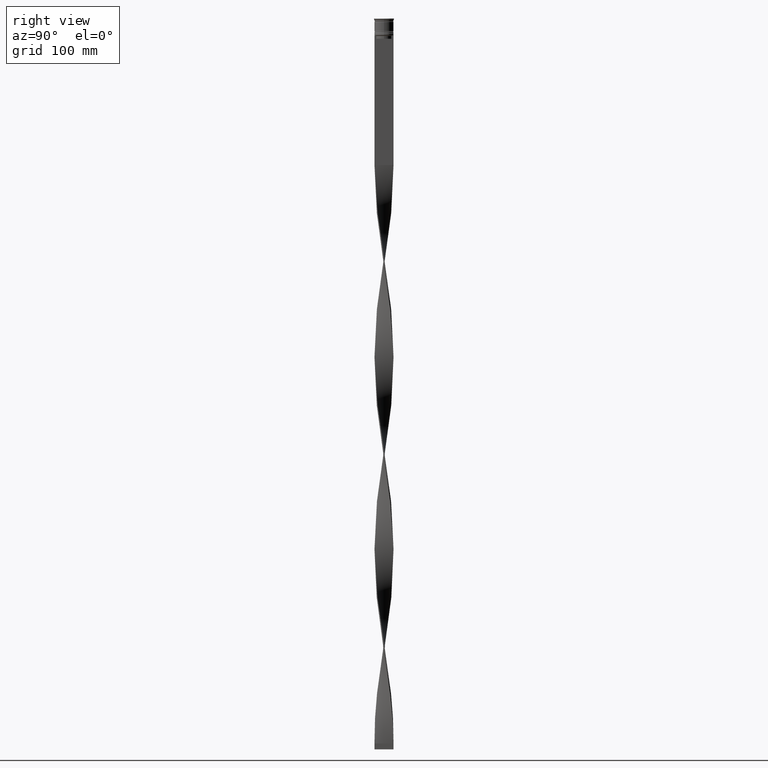
[diagram: clean part render]
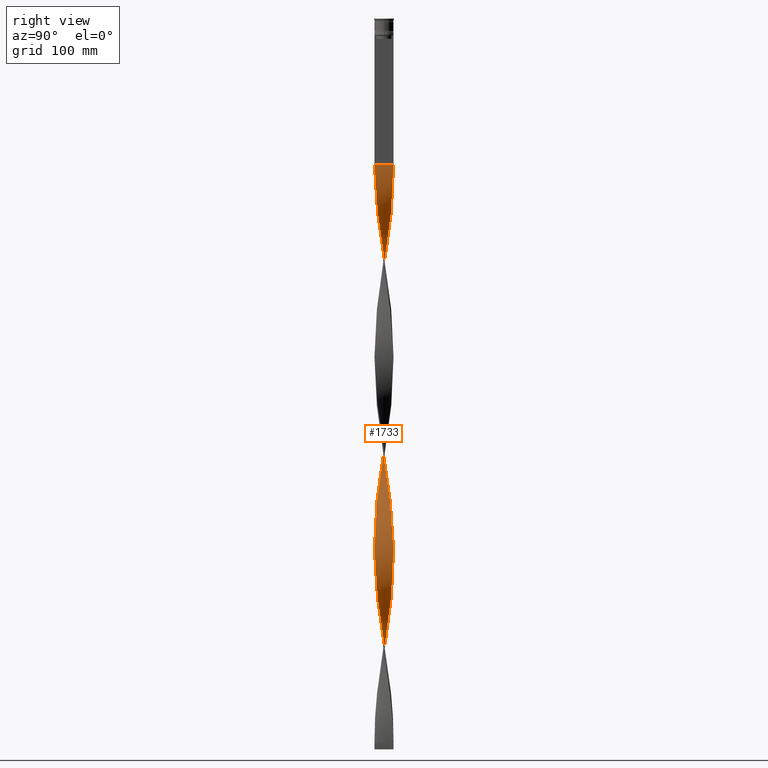
[diagram: same view with one face highlighted and labeled with its STEP entity id]
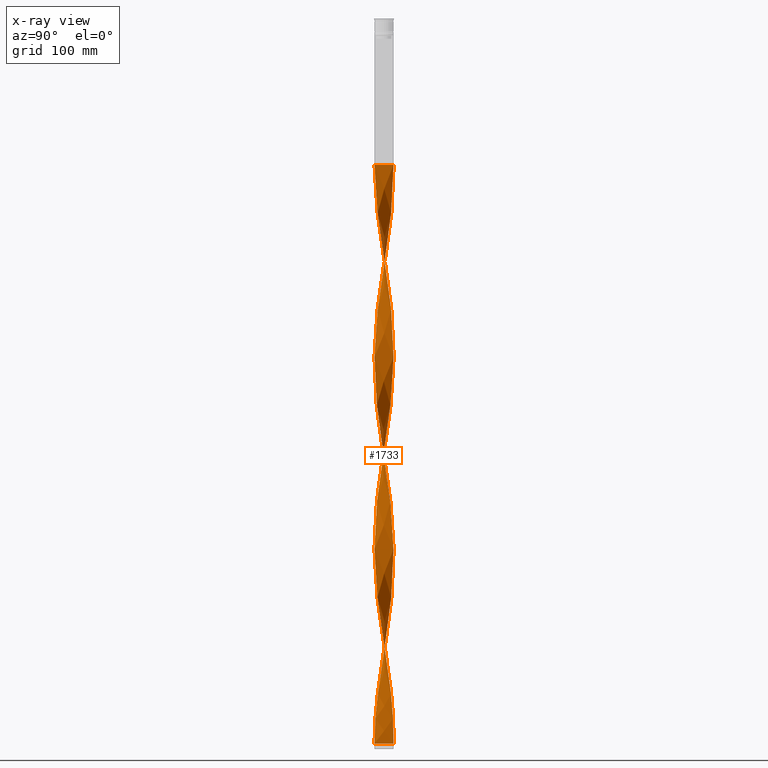
[diagram: x-ray of the same camera — body ghosted, the highlighted face saturated]
A machine part, right view. The second image highlights one B-rep face of the part: STEP entity #1733.
The next image is the same camera in x-ray: the body ghosted, the highlighted face saturated — about 0% of this face is hidden behind the body in this view.
In plain terms, the highlighted face is a freeform B-spline surface patch.
Its self-contained STEP definition (entity closure, byte-faithful):
#3 = CARTESIAN_POINT ( 'NONE',  ( 3.415876052791791739, 7.251330277401769386, -583.0800000000000409 ) ) ;
#6 = CARTESIAN_POINT ( 'NONE',  ( -3.872091084340838041, -7.036421572160664439, -417.8400000000001455 ) ) ;
#10 = CARTESIAN_POINT ( 'NONE',  ( -4.718088392280368026, -6.499535354871833093, -255.8400000000000034 ) ) ;
#17 = CARTESIAN_POINT ( 'NONE',  ( -6.186229683506279109, -5.121999629979042012, -566.8799999999999955 ) ) ;
#30 = CARTESIAN_POINT ( 'NONE',  ( 1.498723219171669063, 7.874250993733667769, -440.5200000000000387 ) ) ;
#38 = CARTESIAN_POINT ( 'NONE',  ( -5.500329109473821809, 5.852409554540299652, -489.1200000000001182 ) ) ;
#48 = CARTESIAN_POINT ( 'NONE',  ( 2.480108178533297458, 7.622274163448353512, -589.5600000000000591 ) ) ;
#56 = CARTESIAN_POINT ( 'NONE',  ( -4.292182732835652104, -6.769576603300047957, -583.0800000000000409 ) ) ;
#70 = CARTESIAN_POINT ( 'NONE',  ( 1.994129100314148806, -7.779959321094168878, -132.7199999999999989 ) ) ;
#79 = CARTESIAN_POINT ( 'NONE',  ( 2.480108178533297458, 7.622274163448353512, -265.5600000000000023 ) ) ;
#83 = CARTESIAN_POINT ( 'NONE',  ( -5.845393947331967155, 5.484648539377410259, -168.3600000000000136 ) ) ;
#88 = CARTESIAN_POINT ( 'NONE',  ( 2.953492255452160986, -7.468681369799080372, -139.1999999999999886 ) ) ;
#98 = CARTESIAN_POINT ( 'NONE',  ( 1.994129100314148584, -7.779959321094168878, -132.7199999999999989 ) ) ;
#123 = CARTESIAN_POINT ( 'NONE',  ( 7.764607348536650022, 1.990194142050143666, -213.7200000000000273 ) ) ;
#136 = CARTESIAN_POINT ( 'NONE',  ( 7.762960627548705084, -1.996607696852003677, -187.8000000000000114 ) ) ;
#148 = CARTESIAN_POINT ( 'NONE',  ( 7.451506065510696608, -2.953820806287573042, -181.3200000000000216 ) ) ;
#154 = CARTESIAN_POINT ( 'NONE',  ( -2.473810677883153453, -7.624320345446617964, -596.0399999999999636 ) ) ;
#160 = CARTESIAN_POINT ( 'NONE',  ( -5.495492638774153171, 5.856951302834851880, -320.6400000000001000 ) ) ;
#167 = CARTESIAN_POINT ( 'NONE',  ( 0.5000000000000001110, -8.000000000000003553, -123.0000000000000000 ) ) ;
#170 = CARTESIAN_POINT ( 'NONE',  ( 4.723455957963784257, 6.495635590130977022, -249.3600000000000136 ) ) ;
#178 = EDGE_LOOP ( 'NONE', ( #3709, #3949, #1135, #419 ) ) ;
#179 = CARTESIAN_POINT ( 'NONE',  ( -4.718088392280368026, -6.499535354871833093, -579.8400000000001455 ) ) ;
#189 = CARTESIAN_POINT ( 'NONE',  ( 5.845393947331972484, 5.484648539377414700, -239.6400000000000148 ) ) ;
#190 = EDGE_CURVE ( 'NONE', #3093, #2516, #3609, .T. ) ;
#200 = CARTESIAN_POINT ( 'NONE',  ( -7.952818567661513960, 1.001337520448642326, -200.7599999999999909 ) ) ;
#201 = CARTESIAN_POINT ( 'NONE',  ( -7.952818567661519289, -1.001337520448645879, -369.2400000000000091 ) ) ;
#206 = CARTESIAN_POINT ( 'NONE',  ( -6.782961227863128606, 4.300669120951436497, -502.0800000000000978 ) ) ;
#207 = CARTESIAN_POINT ( 'NONE',  ( -7.268492320028109077, 3.416626596555742523, -184.5600000000000307 ) ) ;
#212 = CARTESIAN_POINT ( 'NONE',  ( 7.268492320028114406, 3.416626596555746076, -223.4399999999999977 ) ) ;
#217 =( BOUNDED_CURVE ( )  B_SPLINE_CURVE ( 2, ( #3535, #3880, #429, #70, #1817, #88, #2922, #3339, #1495, #2877, #1253, #1180, #842, #819, #4351, #1906, #1207, #1597, #2193, #2241, #136, #3578, #1958, #2633, #4259, #3971, #2615, #2973, #2588, #1933, #3314, #212, #1543, #2294, #4020, #869, #189, #473, #1860, #2268, #549, #917, #3624, #3599, #3677, #1520, #1158, #2539, #3234, #3922, #2899, #4281, #2561, #496, #3288, #4303, #573, #3947, #2215, #1883, #3261, #160, #521, #1572, #2947, #4327, #1232, #3995, #892, #3649, #2066, #1000, #3016, #1277, #4371, #1020, #2721, #3701, #977, #4432, #3791, #3360, #3720, #591, #1340, #2742, #2658, #300, #4044, #2699, #2996, #1643, #3384, #1296, #319, #1361, #4127, #3036, #2360, #2382, #278, #2001, #3056, #1684, #4393, #660, #1663, #4106, #3769, #255, #936, #2680, #4065, #957, #637, #2043, #4413, #3746, #2024, #1977, #3407, #2317, #3426, #1704, #2336, #4084, #3081, #1317, #4455, #2402, #680, #613, #234, #1619, #1725, #706, #2425, #3447, #3813, #342, #3103, #4148, #3, #2762, #1384, #1040, #2977, #2880, #3317, #3977, #577 ),
 .UNSPECIFIED., .F., .T. ) 
 B_SPLINE_CURVE_WITH_KNOTS ( ( 3, 2, 2, 2, 2, 2, 2, 2, 2, 2, 2, 2, 2, 2, 2, 2, 2, 2, 2, 2, 2, 2, 2, 2, 2, 2, 2, 2, 2, 2, 2, 2, 2, 2, 2, 2, 2, 2, 2, 2, 2, 2, 2, 2, 2, 2, 2, 2, 2, 2, 2, 2, 2, 2, 2, 2, 2, 2, 2, 2, 2, 2, 2, 2, 2, 2, 2, 2, 2, 2, 2, 2, 2, 2, 2, 3 ),
 ( 0.000000000000000000, 0.01000000000000000021, 0.02000000000000000042, 0.02999999999999999889, 0.04000000000000000083, 0.05000000000000000971, 0.05999999999999999778, 0.07000000000000000666, 0.08000000000000000167, 0.09000000000000001055, 0.1000000000000000194, 0.1100000000000000006, 0.1199999999999999956, 0.1300000000000000044, 0.1400000000000000133, 0.1499999999999999944, 0.1600000000000000033, 0.1700000000000000122, 0.1800000000000000211, 0.1900000000000000300, 0.2000000000000000389, 0.2099999999999999922, 0.2200000000000000011, 0.2300000000000000100, 0.2399999999999999911, 0.2500000000000000000, 0.2600000000000000089, 0.2700000000000000178, 0.2800000000000000266, 0.2899999999999999800, 0.2999999999999999889, 0.3099999999999999978, 0.3200000000000000067, 0.3300000000000000155, 0.3400000000000000244, 0.3499999999999999223, 0.3600000000000000422, 0.3699999999999999400, 0.3800000000000000600, 0.3899999999999999578, 0.4000000000000000777, 0.4099999999999999756, 0.4199999999999999845, 0.4299999999999999933, 0.4400000000000000022, 0.4500000000000000111, 0.4600000000000000200, 0.4699999999999999734, 0.4799999999999999822, 0.4899999999999999911, 0.5000000000000000000, 0.5100000000000000089, 0.5200000000000000178, 0.5300000000000000266, 0.5400000000000000355, 0.5500000000000000444, 0.5600000000000000533, 0.5699999999999999512, 0.5799999999999999600, 0.5899999999999999689, 0.5999999999999999778, 0.6099999999999999867, 0.6199999999999999956, 0.6300000000000000044, 0.6400000000000000133, 0.6500000000000000222, 0.6600000000000000311, 0.6700000000000000400, 0.6800000000000000488, 0.6899999999999999467, 0.6999999999999998446, 0.7099999999999999645, 0.7200000000000000844, 0.7299999999999999822, 0.7399999999999998801, 0.7500000000000000000 ),
 .UNSPECIFIED. ) 
 CURVE ( )  GEOMETRIC_REPRESENTATION_ITEM ( )  RATIONAL_B_SPLINE_CURVE ( ( 1.000000000000000000, 0.9980267284282715590, 1.000000000000000000, 0.9980267284282715590, 1.000000000000000000, 0.9980267284282715590, 1.000000000000000000, 0.9980267284282715590, 1.000000000000000000, 0.9980267284282715590, 1.000000000000000000, 0.9980267284282715590, 1.000000000000000000, 0.9980267284282715590, 1.000000000000000000, 0.9980267284282715590, 1.000000000000000000, 0.9980267284282715590, 1.000000000000000000, 0.9980267284282715590, 1.000000000000000000, 0.9980267284282715590, 1.000000000000000000, 0.9980267284282715590, 1.000000000000000000, 0.9980267284282715590, 1.000000000000000000, 0.9980267284282715590, 1.000000000000000000, 0.9980267284282715590, 1.000000000000000000, 0.9980267284282715590, 1.000000000000000000, 0.9980267284282715590, 1.000000000000000000, 0.9980267284282715590, 1.000000000000000000, 0.9980267284282715590, 1.000000000000000000, 0.9980267284282715590, 1.000000000000000000, 0.9980267284282715590, 1.000000000000000000, 0.9980267284282715590, 1.000000000000000000, 0.9980267284282715590, 1.000000000000000000, 0.9980267284282715590, 1.000000000000000000, 0.9980267284282715590, 1.000000000000000000, 0.9980267284282715590, 1.000000000000000000, 0.9980267284282715590, 1.000000000000000000, 0.9980267284282715590, 1.000000000000000000, 0.9980267284282715590, 1.000000000000000000, 0.9980267284282715590, 1.000000000000000000, 0.9980267284282715590, 1.000000000000000000, 0.9980267284282715590, 1.000000000000000000, 0.9980267284282715590, 1.000000000000000000, 0.9980267284282715590, 1.000000000000000000, 0.9980267284282715590, 1.000000000000000000, 0.9980267284282715590, 1.000000000000000000, 0.9980267284282715590, 1.000000000000000000, 0.9980267284282715590, 1.000000000000000000, 0.9980267284282715590, 1.000000000000000000, 0.9980267284282715590, 1.000000000000000000, 0.9980267284282715590, 1.000000000000000000, 0.9980267284282715590, 1.000000000000000000, 0.9980267284282715590, 1.000000000000000000, 0.9980267284282715590, 1.000000000000000000, 0.9980267284282715590, 1.000000000000000000, 0.9980267284282715590, 1.000000000000000000, 0.9980267284282715590, 1.000000000000000000, 0.9980267284282715590, 1.000000000000000000, 0.9980267284282715590, 1.000000000000000000, 0.9980267284282715590, 1.000000000000000000, 0.9980267284282715590, 1.000000000000000000, 0.9980267284282715590, 1.000000000000000000, 0.9980267284282715590, 1.000000000000000000, 0.9980267284282715590, 1.000000000000000000, 0.9980267284282715590, 1.000000000000000000, 0.9980267284282715590, 1.000000000000000000, 0.9980267284282715590, 1.000000000000000000, 0.9980267284282715590, 1.000000000000000000, 0.9980267284282715590, 1.000000000000000000, 0.9980267284282715590, 1.000000000000000000, 0.9980267284282715590, 1.000000000000000000, 0.9980267284282715590, 1.000000000000000000, 0.9980267284282715590, 1.000000000000000000, 0.9980267284282715590, 1.000000000000000000, 0.9980267284282715590, 1.000000000000000000, 0.9980267284282715590, 1.000000000000000000, 0.9980267284282715590, 1.000000000000000000, 0.9980267284282715590, 1.000000000000000000, 0.9980267284282715590, 1.000000000000000000, 0.9980267284282715590, 1.000000000000000000, 0.9980267284282715590, 1.000000000000000000, 0.9980267284282715590, 1.000000000000000000, 0.9980267284282715590, 1.000000000000000000, 0.9980267284282715590, 1.000000000000000000, 0.9980267284282715590, 1.000000000000000000 ) ) 
 REPRESENTATION_ITEM ( '' )  );
#221 = CARTESIAN_POINT ( 'NONE',  ( -8.015400789812517246, -0.5076101705763141902, -210.4800000000000182 ) ) ;
#229 = CARTESIAN_POINT ( 'NONE',  ( -7.268492320028109077, 3.416626596555742523, -508.5600000000001160 ) ) ;
#230 = CARTESIAN_POINT ( 'NONE',  ( 2.959661021242741885, -7.466238982642869004, -307.6800000000000637 ) ) ;
#234 = CARTESIAN_POINT ( 'NONE',  ( 7.025726773945621950, 3.858647858753593063, -550.6800000000000637 ) ) ;
#248 = CARTESIAN_POINT ( 'NONE',  ( -7.025726773945617509, 3.858647858753589510, -505.3199999999999932 ) ) ;
#249 = CARTESIAN_POINT ( 'NONE',  ( 3.872091084340838041, -7.036421572160658222, -314.1599999999999682 ) ) ;
#255 = CARTESIAN_POINT ( 'NONE',  ( 4.718088392280371579, -6.499535354871838422, -476.1600000000000250 ) ) ;
#266 = CARTESIAN_POINT ( 'NONE',  ( 3.415876052791789519, -7.251330277401763169, -310.9199999999999591 ) ) ;
#274 = CARTESIAN_POINT ( 'NONE',  ( 8.015400789812517246, 0.5076101705763128580, -372.4800000000000750 ) ) ;
#278 = CARTESIAN_POINT ( 'NONE',  ( 0.5000000000000001110, -8.000000000000003553, -447.0000000000000000 ) ) ;
#282 = CARTESIAN_POINT ( 'NONE',  ( 7.762960627548705084, -1.996607696852003677, -511.8000000000000114 ) ) ;
#289 = CARTESIAN_POINT ( 'NONE',  ( 7.637344718665179499, 2.485011781637414430, -385.4399999999999977 ) ) ;
#295 = CARTESIAN_POINT ( 'NONE',  ( -6.779406190655033804, -4.306270963224198667, -236.4000000000000341 ) ) ;
#300 = CARTESIAN_POINT ( 'NONE',  ( -5.500329109473826250, -5.852409554540304981, -404.8799999999999955 ) ) ;
#304 = CARTESIAN_POINT ( 'NONE',  ( -2.480108178533298346, -7.622274163448353512, -427.5600000000000023 ) ) ;
#308 = CARTESIAN_POINT ( 'NONE',  ( 6.190458785190111612, -5.116887524214522642, -333.6000000000000227 ) ) ;
#313 = CARTESIAN_POINT ( 'NONE',  ( -7.265667412356199506, -3.422629830937729434, -553.9200000000001864 ) ) ;
#319 = CARTESIAN_POINT ( 'NONE',  ( -2.480108178533298346, -7.622274163448353512, -427.5600000000000023 ) ) ;
#324 = CARTESIAN_POINT ( 'NONE',  ( 4.292182732835656545, -6.769576603300054174, -472.9200000000000159 ) ) ;
#331 = CARTESIAN_POINT ( 'NONE',  ( -7.022536801505615323, -3.864450397080966049, -233.1599999999999966 ) ) ;
#337 = CARTESIAN_POINT ( 'NONE',  ( -4.297773521152309151, 6.766028581145814513, -479.4000000000000341 ) ) ;
#342 = CARTESIAN_POINT ( 'NONE',  ( 4.723455957963784257, 6.495635590130977022, -573.3600000000001273 ) ) ;
#346 = CARTESIAN_POINT ( 'NONE',  ( -3.415876052791792628, -7.251330277401769386, -421.0799999999999841 ) ) ;
#350 = CARTESIAN_POINT ( 'NONE',  ( 7.022536801505615323, 3.864450397080965161, -395.1600000000000250 ) ) ;
#358 = CARTESIAN_POINT ( 'NONE',  ( -7.764607348536644693, 1.990194142050140114, -518.2800000000000864 ) ) ;
#365 = CARTESIAN_POINT ( 'NONE',  ( 7.025726773945621950, 3.858647858753593063, -550.6800000000000637 ) ) ;
#370 = CARTESIAN_POINT ( 'NONE',  ( -2.480108178533296570, 7.622274163448347295, -466.4399999999999977 ) ) ;
#376 = CARTESIAN_POINT ( 'NONE',  ( 6.186229683506279997, 5.121999629979041124, -404.8799999999999955 ) ) ;
#384 = CARTESIAN_POINT ( 'NONE',  ( 8.015609087190831872, -0.003310792020370695483, -524.7599999999999909 ) ) ;
#398 = CARTESIAN_POINT ( 'NONE',  ( 0.5000000000000001110, 7.999999999999996447, -447.0000000000000000 ) ) ;
#418 = CARTESIAN_POINT ( 'NONE',  ( 4.718088392280371579, -6.499535354871838422, -152.1599999999999966 ) ) ;
#419 = ORIENTED_EDGE ( 'NONE', *, *, #4201, .F. ) ;
#429 = CARTESIAN_POINT ( 'NONE',  ( 1.498723219171673504, -7.874250993733674875, -129.4800000000000182 ) ) ;
#438 = CARTESIAN_POINT ( 'NONE',  ( 6.482817937080661785, -4.714135296601624781, -168.3600000000000136 ) ) ;
#462 = CARTESIAN_POINT ( 'NONE',  ( -2.953492255452163207, 7.468681369799081260, -301.2000000000000455 ) ) ;
#473 = CARTESIAN_POINT ( 'NONE',  ( 5.500329109473826250, 5.852409554540304981, -242.8800000000000523 ) ) ;
#482 = CARTESIAN_POINT ( 'NONE',  ( 7.888576536432224451, -1.508203612066592036, -191.0400000000000205 ) ) ;
#487 = CARTESIAN_POINT ( 'NONE',  ( -7.453943633173751415, 2.947664213147155543, -511.8000000000000114 ) ) ;
#489 = CARTESIAN_POINT ( 'NONE',  ( -1.505227516754521488, 7.873010232611473036, -135.9600000000000080 ) ) ;
#496 = CARTESIAN_POINT ( 'NONE',  ( -1.994129100314149694, 7.779959321094168878, -294.7199999999999704 ) ) ;
#506 = CARTESIAN_POINT ( 'NONE',  ( -5.500329109473821809, 5.852409554540299652, -165.1200000000000045 ) ) ;
#507 = CARTESIAN_POINT ( 'NONE',  ( 4.292182732835656545, -6.769576603300054174, -148.9199999999999875 ) ) ;
#521 = CARTESIAN_POINT ( 'NONE',  ( -5.840861161140218805, 5.489475466406950943, -323.8799999999999955 ) ) ;
#531 = CARTESIAN_POINT ( 'NONE',  ( -1.505227516754521488, 7.873010232611473036, -135.9600000000000080 ) ) ;
#533 = CARTESIAN_POINT ( 'NONE',  ( -8.015609087190831872, 0.003310792020369936542, -362.7600000000000477 ) ) ;
#542 = CARTESIAN_POINT ( 'NONE',  ( -5.111892533718801701, 6.174022572335633896, -485.8800000000000523 ) ) ;
#543 = CARTESIAN_POINT ( 'NONE',  ( -3.872091084340837153, 7.036421572160659110, -152.1599999999999966 ) ) ;
#549 = CARTESIAN_POINT ( 'NONE',  ( 4.297773521152314480, 6.766028581145818066, -252.6000000000000512 ) ) ;
#567 = CARTESIAN_POINT ( 'NONE',  ( 2.000555335823854808, -7.778309344253825586, -301.2000000000000455 ) ) ;
#573 = CARTESIAN_POINT ( 'NONE',  ( -3.409884664421553691, 7.254149610763673373, -304.4400000000000546 ) ) ;
#577 = CARTESIAN_POINT ( 'NONE',  ( -0.5000000000000027756, 8.000000000000003553, -609.0000000000000000 ) ) ;
#586 = CARTESIAN_POINT ( 'NONE',  ( -5.500329109473821809, 5.852409554540299652, -489.1200000000001182 ) ) ;
#587 = CARTESIAN_POINT ( 'NONE',  ( -7.764607348536644693, 1.990194142050140114, -194.2800000000000011 ) ) ;
#591 = CARTESIAN_POINT ( 'NONE',  ( -6.782961227863131271, -4.300669120951444491, -391.9200000000001296 ) ) ;
#599 = CARTESIAN_POINT ( 'NONE',  ( -8.015817384569135839, 0.5009885865355701018, -204.0000000000000284 ) ) ;
#607 = CARTESIAN_POINT ( 'NONE',  ( 8.015609087190826543, 0.003310792020373622829, -369.2400000000000091 ) ) ;
#613 = CARTESIAN_POINT ( 'NONE',  ( 7.268492320028114406, 3.416626596555746076, -547.4400000000001683 ) ) ;
#618 = CARTESIAN_POINT ( 'NONE',  ( -6.482817937080662674, 4.714135296601623892, -330.3600000000000136 ) ) ;
#625 = CARTESIAN_POINT ( 'NONE',  ( 7.265667412356198618, 3.422629830937731654, -391.9200000000001296 ) ) ;
#632 = CARTESIAN_POINT ( 'NONE',  ( -2.953492255452156989, -7.468681369799075931, -268.8000000000001251 ) ) ;
#637 = CARTESIAN_POINT ( 'NONE',  ( 6.482817937080661785, -4.714135296601624781, -492.3600000000000136 ) ) ;
#641 = CARTESIAN_POINT ( 'NONE',  ( -5.106790515527262819, 6.178243328853343819, -317.4000000000000341 ) ) ;
#647 = CARTESIAN_POINT ( 'NONE',  ( 4.292182732835652992, 6.769576603300047957, -421.0799999999999841 ) ) ;
#654 = CARTESIAN_POINT ( 'NONE',  ( -7.888576536432219122, -1.508203612066591148, -216.9600000000000080 ) ) ;
#660 = CARTESIAN_POINT ( 'NONE',  ( 2.953492255452160986, -7.468681369799080372, -463.2000000000000455 ) ) ;
#664 = CARTESIAN_POINT ( 'NONE',  ( -2.000555335823849035, -7.778309344253833579, -430.8000000000000682 ) ) ;
#669 = CARTESIAN_POINT ( 'NONE',  ( -2.953492255452156989, -7.468681369799075931, -268.8000000000000682 ) ) ;
#674 = CARTESIAN_POINT ( 'NONE',  ( -2.480108178533296570, 7.622274163448347295, -466.4399999999999977 ) ) ;
#680 = CARTESIAN_POINT ( 'NONE',  ( 7.453943633173757632, 2.947664213147158208, -544.2000000000000455 ) ) ;
#685 = CARTESIAN_POINT ( 'NONE',  ( -6.782961227863132159, -4.300669120951443603, -391.9200000000000728 ) ) ;
#692 = CARTESIAN_POINT ( 'NONE',  ( 7.762960627548699755, 1.996607696851999680, -382.2000000000000455 ) ) ;
#700 = CARTESIAN_POINT ( 'NONE',  ( -2.959661021242742329, 7.466238982642869004, -469.6800000000001205 ) ) ;
#706 = CARTESIAN_POINT ( 'NONE',  ( 6.190458785190118718, 5.116887524214525307, -560.3999999999999773 ) ) ;
#710 = CARTESIAN_POINT ( 'NONE',  ( 6.782961227863133047, 4.300669120951441826, -553.9200000000001864 ) ) ;
#716 = CARTESIAN_POINT ( 'NONE',  ( -1.009899697685191278, 7.967711120969122263, -456.7200000000000841 ) ) ;
#724 = CARTESIAN_POINT ( 'NONE',  ( 7.451506065510690391, 2.953820806287569489, -388.6800000000000068 ) ) ;
#730 = CARTESIAN_POINT ( 'NONE',  ( -0.4999999999999992784, -2.666666666666663410, -609.0000000000000000 ) ) ;
#744 = CARTESIAN_POINT ( 'NONE',  ( -7.951988663122367740, -1.007906891321453502, -537.7200000000000273 ) ) ;
#765 = CARTESIAN_POINT ( 'NONE',  ( 8.015817384569144721, 0.5009885865355727663, -204.0000000000000284 ) ) ;
#784 = CARTESIAN_POINT ( 'NONE',  ( 3.872091084340840705, 7.036421572160664439, -255.8399999999999750 ) ) ;
#798 = CARTESIAN_POINT ( 'NONE',  ( 2.000555335823852143, 7.778309344253832691, -592.8000000000001819 ) ) ;
#807 = CARTESIAN_POINT ( 'NONE',  ( 7.951988663122376622, -1.007906891321452170, -194.2800000000000011 ) ) ;
#812 = CARTESIAN_POINT ( 'NONE',  ( -2.000555335823852143, 7.778309344253825586, -139.1999999999999602 ) ) ;
#819 = CARTESIAN_POINT ( 'NONE',  ( 6.186229683506286214, -5.121999629979046453, -165.1200000000000045 ) ) ;
#828 = CARTESIAN_POINT ( 'NONE',  ( 1.505227516754523709, 7.873010232611480141, -272.0400000000000205 ) ) ;
#842 = CARTESIAN_POINT ( 'NONE',  ( 5.840861161140218805, -5.489475466406950943, -161.8799999999999955 ) ) ;
#853 = CARTESIAN_POINT ( 'NONE',  ( 5.106790515527261043, -6.178243328853345595, -155.4000000000000057 ) ) ;
#860 = CARTESIAN_POINT ( 'NONE',  ( -3.415876052791789075, 7.251330277401763169, -472.9200000000000159 ) ) ;
#869 = CARTESIAN_POINT ( 'NONE',  ( 6.190458785190118718, 5.116887524214525307, -236.4000000000000341 ) ) ;
#878 = CARTESIAN_POINT ( 'NONE',  ( -7.268492320028109077, 3.416626596555742523, -184.5600000000000307 ) ) ;
#880 = CARTESIAN_POINT ( 'NONE',  ( 7.022536801505622428, -3.864450397080966937, -498.8400000000000318 ) ) ;
#885 = CARTESIAN_POINT ( 'NONE',  ( -6.186229683506279997, -5.121999629979042012, -566.8799999999999955 ) ) ;
#892 = CARTESIAN_POINT ( 'NONE',  ( -7.451506065510697496, 2.953820806287569045, -343.3199999999999932 ) ) ;
#901 = CARTESIAN_POINT ( 'NONE',  ( -2.000555335823852587, 7.778309344253825586, -139.1999999999999886 ) ) ;
#909 = CARTESIAN_POINT ( 'NONE',  ( 7.453943633173751415, -2.947664213147155987, -349.8000000000000114 ) ) ;
#917 = CARTESIAN_POINT ( 'NONE',  ( 3.872091084340840705, 7.036421572160664439, -255.8400000000000034 ) ) ;
#923 = CARTESIAN_POINT ( 'NONE',  ( -5.111892533718801701, 6.174022572335633896, -161.8799999999999955 ) ) ;
#930 = CARTESIAN_POINT ( 'NONE',  ( -7.762960627548698866, -1.996607696852002345, -220.2000000000000171 ) ) ;
#936 = CARTESIAN_POINT ( 'NONE',  ( 5.106790515527261043, -6.178243328853345595, -479.4000000000000341 ) ) ;
#944 = CARTESIAN_POINT ( 'NONE',  ( -2.480108178533296570, 7.622274163448347295, -142.4399999999999977 ) ) ;
#950 = CARTESIAN_POINT ( 'NONE',  ( -7.637344718665181276, -2.485011781637412209, -547.4400000000001683 ) ) ;
#952 = CARTESIAN_POINT ( 'NONE',  ( 7.889819750753890304, -1.501686454361710332, -359.5200000000000955 ) ) ;
#957 = CARTESIAN_POINT ( 'NONE',  ( 6.186229683506286214, -5.121999629979046453, -489.1200000000001182 ) ) ;
#961 = CARTESIAN_POINT ( 'NONE',  ( -7.639394946319403523, -2.478701829738569895, -378.9600000000000932 ) ) ;
#966 = CARTESIAN_POINT ( 'NONE',  ( 7.764607348536644693, -1.990194142050141002, -356.2800000000000296 ) ) ;
#971 = CARTESIAN_POINT ( 'NONE',  ( -7.022536801505615323, -3.864450397080966049, -233.1599999999999966 ) ) ;
#977 = CARTESIAN_POINT ( 'NONE',  ( -7.764607348536649134, -1.990194142050145665, -375.7199999999999704 ) ) ;
#983 = CARTESIAN_POINT ( 'NONE',  ( 1.003317338029198647, -7.968542666373180872, -450.2400000000000659 ) ) ;
#988 = CARTESIAN_POINT ( 'NONE',  ( 5.495492638774146954, 5.856951302834849216, -411.3600000000000705 ) ) ;
#995 = CARTESIAN_POINT ( 'NONE',  ( 4.297773521152310927, -6.766028581145812737, -317.4000000000000341 ) ) ;
#1000 = CARTESIAN_POINT ( 'NONE',  ( -7.888576536432226227, 1.508203612066590038, -353.0400000000000205 ) ) ;
#1003 = CARTESIAN_POINT ( 'NONE',  ( 2.953492255452160542, -7.468681369799081260, -463.2000000000000455 ) ) ;
#1009 = CARTESIAN_POINT ( 'NONE',  ( 4.718088392280365362, 6.499535354871834869, -417.8400000000000887 ) ) ;
#1015 = CARTESIAN_POINT ( 'NONE',  ( -8.015400789812517246, -0.5076101705763140792, -534.4800000000000182 ) ) ;
#1020 = CARTESIAN_POINT ( 'NONE',  ( -8.015817384569142945, -0.5009885865355698797, -366.0000000000000000 ) ) ;
#1023 = CARTESIAN_POINT ( 'NONE',  ( -5.840861161140218805, 5.489475466406950943, -323.8799999999999955 ) ) ;
#1027 = CARTESIAN_POINT ( 'NONE',  ( 6.782961227863127718, -4.300669120951437385, -340.0800000000000978 ) ) ;
#1034 = CARTESIAN_POINT ( 'NONE',  ( -7.762960627548698866, -1.996607696852002345, -544.2000000000000455 ) ) ;
#1040 = CARTESIAN_POINT ( 'NONE',  ( 2.000555335823852587, 7.778309344253832691, -592.8000000000000682 ) ) ;
#1046 = CARTESIAN_POINT ( 'NONE',  ( 7.889819750753897409, 1.501686454361716327, -534.4800000000000182 ) ) ;
#1052 = CARTESIAN_POINT ( 'NONE',  ( -6.482817937080656456, -4.714135296601621228, -239.6400000000000148 ) ) ;
#1059 = CARTESIAN_POINT ( 'NONE',  ( -7.889819750753890304, 1.501686454361714773, -521.5200000000002092 ) ) ;
#1068 = CARTESIAN_POINT ( 'NONE',  ( 4.723455957963784257, 6.495635590130977022, -573.3600000000000136 ) ) ;
#1074 = CARTESIAN_POINT ( 'NONE',  ( -2.000555335823852587, 7.778309344253825586, -463.2000000000000455 ) ) ;
#1081 = CARTESIAN_POINT ( 'NONE',  ( -7.888576536432219122, -1.508203612066591148, -540.9600000000001501 ) ) ;
#1092 = CARTESIAN_POINT ( 'NONE',  ( 5.845393947331972484, 5.484648539377414700, -563.6399999999999864 ) ) ;
#1099 = CARTESIAN_POINT ( 'NONE',  ( 6.779406190655031139, 4.306270963224203996, -398.4000000000000909 ) ) ;
#1125 = CARTESIAN_POINT ( 'NONE',  ( 2.000555335823852143, 7.778309344253832691, -268.8000000000001251 ) ) ;
#1134 = CARTESIAN_POINT ( 'NONE',  ( 8.015817384569144721, 0.5009885865355727663, -528.0000000000000000 ) ) ;
#1135 = ORIENTED_EDGE ( 'NONE', *, *, #1566, .F. ) ;
#1145 = CARTESIAN_POINT ( 'NONE',  ( -2.473810677883153453, -7.624320345446617964, -596.0399999999999636 ) ) ;
#1158 = CARTESIAN_POINT ( 'NONE',  ( 1.505227516754523709, 7.873010232611480141, -272.0400000000000205 ) ) ;
#1168 = CARTESIAN_POINT ( 'NONE',  ( 3.866277073390941066, -7.039617851728269038, -145.6800000000000352 ) ) ;
#1180 = CARTESIAN_POINT ( 'NONE',  ( 5.495492638774151395, -5.856951302834852768, -158.6400000000000148 ) ) ;
#1191 = CARTESIAN_POINT ( 'NONE',  ( -8.015609087190826543, -0.003310792020371129164, -207.2400000000000091 ) ) ;
#1192 = CARTESIAN_POINT ( 'NONE',  ( 7.952818567661520177, 1.001337520448643437, -207.2400000000000091 ) ) ;
#1201 = CARTESIAN_POINT ( 'NONE',  ( -6.190458785190113389, 5.116887524214521754, -171.6000000000000512 ) ) ;
#1207 = CARTESIAN_POINT ( 'NONE',  ( 7.022536801505622428, -3.864450397080966937, -174.8400000000000034 ) ) ;
#1217 = CARTESIAN_POINT ( 'NONE',  ( -0.4999999999999975020, -7.999999999999996447, -609.0000000000000000 ) ) ;
#1223 = CARTESIAN_POINT ( 'NONE',  ( -0.4999999999999975020, -7.999999999999996447, -609.0000000000000000 ) ) ;
#1232 = CARTESIAN_POINT ( 'NONE',  ( -7.022536801505624204, 3.864450397080964716, -336.8400000000000318 ) ) ;
#1241 = CARTESIAN_POINT ( 'NONE',  ( -0.003317338029197808638, 8.031457333626823569, -126.2400000000000233 ) ) ;
#1248 = CARTESIAN_POINT ( 'NONE',  ( -7.762960627548698866, -1.996607696852002345, -544.2000000000000455 ) ) ;
#1249 = CARTESIAN_POINT ( 'NONE',  ( 4.723455957963784257, -6.495635590130969028, -320.6400000000001000 ) ) ;
#1253 = CARTESIAN_POINT ( 'NONE',  ( 5.106790515527261043, -6.178243328853345595, -155.4000000000000057 ) ) ;
#1271 = CARTESIAN_POINT ( 'NONE',  ( 5.111892533718801701, -6.174022572335633896, -323.8799999999999955 ) ) ;
#1277 = CARTESIAN_POINT ( 'NONE',  ( -8.015400789812524351, 0.5076101705763098604, -359.5200000000000387 ) ) ;
#1284 = CARTESIAN_POINT ( 'NONE',  ( -7.453943633173751415, 2.947664213147155543, -187.8000000000000114 ) ) ;
#1290 = CARTESIAN_POINT ( 'NONE',  ( -7.764607348536644693, 1.990194142050140114, -518.2800000000000864 ) ) ;
#1291 = CARTESIAN_POINT ( 'NONE',  ( -6.186229683506279109, -5.121999629979042012, -242.8800000000000239 ) ) ;
#1296 = CARTESIAN_POINT ( 'NONE',  ( -2.959661021242740553, -7.466238982642877886, -424.3200000000000500 ) ) ;
#1300 = CARTESIAN_POINT ( 'NONE',  ( 3.409884664421551026, -7.254149610763674261, -466.4399999999999977 ) ) ;
#1305 = CARTESIAN_POINT ( 'NONE',  ( -5.106790515527258378, -6.178243328853339378, -252.6000000000000512 ) ) ;
#1311 = CARTESIAN_POINT ( 'NONE',  ( 7.762960627548699755, 1.996607696851999680, -382.2000000000000455 ) ) ;
#1317 = CARTESIAN_POINT ( 'NONE',  ( 7.889819750753897409, 1.501686454361716327, -534.4800000000000182 ) ) ;
#1320 = CARTESIAN_POINT ( 'NONE',  ( 7.888576536432224451, -1.508203612066592036, -515.0400000000001910 ) ) ;
#1324 = CARTESIAN_POINT ( 'NONE',  ( 4.723455957963784257, -6.495635590130969028, -320.6400000000001000 ) ) ;
#1332 = CARTESIAN_POINT ( 'NONE',  ( -7.265667412356199506, -3.422629830937729434, -229.9200000000000443 ) ) ;
#1340 = CARTESIAN_POINT ( 'NONE',  ( -6.486710006526624106, -4.708778322582984011, -395.1600000000000250 ) ) ;
#1346 = CARTESIAN_POINT ( 'NONE',  ( 5.495492638774150507, -5.856951302834852768, -482.6400000000001000 ) ) ;
#1351 = CARTESIAN_POINT ( 'NONE',  ( 7.952818567661513960, -1.001337520448641438, -362.7600000000000477 ) ) ;
#1356 = CARTESIAN_POINT ( 'NONE',  ( 1.003317338029197536, 7.968542666373174654, -443.7599999999999909 ) ) ;
#1361 = CARTESIAN_POINT ( 'NONE',  ( -2.000555335823849035, -7.778309344253833579, -430.8000000000000682 ) ) ;
#1365 = CARTESIAN_POINT ( 'NONE',  ( -0.003317338029197266971, -8.031457333626828898, -443.7599999999999909 ) ) ;
#1372 = CARTESIAN_POINT ( 'NONE',  ( 7.268492320028109077, -3.416626596555742523, -346.5600000000000023 ) ) ;
#1378 = CARTESIAN_POINT ( 'NONE',  ( 1.498723219171669063, 7.874250993733667769, -440.5200000000000387 ) ) ;
#1384 = CARTESIAN_POINT ( 'NONE',  ( 2.480108178533297458, 7.622274163448353512, -589.5600000000000591 ) ) ;
#1387 = CARTESIAN_POINT ( 'NONE',  ( -2.959661021242740553, -7.466238982642876998, -424.3200000000000500 ) ) ;
#1392 = CARTESIAN_POINT ( 'NONE',  ( 1.505227516754523265, -7.873010232611473036, -297.9599999999999795 ) ) ;
#1399 = CARTESIAN_POINT ( 'NONE',  ( -5.840861161140211699, -5.489475466406946502, -570.1200000000000045 ) ) ;
#1408 = CARTESIAN_POINT ( 'NONE',  ( 7.952818567661520177, 1.001337520448643437, -531.2400000000000091 ) ) ;
#1415 = CARTESIAN_POINT ( 'NONE',  ( 0.5000000000000001110, 7.999999999999996447, -447.0000000000000000 ) ) ;
#1421 = CARTESIAN_POINT ( 'NONE',  ( -7.639394946319396418, 2.478701829738566342, -515.0400000000001910 ) ) ;
#1431 = CARTESIAN_POINT ( 'NONE',  ( 0.003317338029196290321, 8.031457333626828898, -605.7599999999999909 ) ) ;
#1441 = CARTESIAN_POINT ( 'NONE',  ( 4.718088392280365362, 6.499535354871834869, -417.8400000000001455 ) ) ;
#1461 = CARTESIAN_POINT ( 'NONE',  ( 2.953492255452160542, -7.468681369799081260, -139.1999999999999602 ) ) ;
#1471 = CARTESIAN_POINT ( 'NONE',  ( 7.951988663122376622, -1.007906891321452170, -518.2800000000000864 ) ) ;
#1482 = CARTESIAN_POINT ( 'NONE',  ( -1.498723219171671284, -7.874250993733667769, -602.5200000000000955 ) ) ;
#1489 = FACE_OUTER_BOUND ( 'NONE', #178, .T. ) ;
#1495 = CARTESIAN_POINT ( 'NONE',  ( 4.292182732835656545, -6.769576603300054174, -148.9199999999999875 ) ) ;
#1507 = CARTESIAN_POINT ( 'NONE',  ( 2.473810677883154785, -7.624320345446625069, -135.9600000000000080 ) ) ;
#1520 = CARTESIAN_POINT ( 'NONE',  ( 2.000555335823852587, 7.778309344253832691, -268.8000000000000682 ) ) ;
#1529 = CARTESIAN_POINT ( 'NONE',  ( 1.003317338029198647, -7.968542666373180872, -126.2400000000000233 ) ) ;
#1536 = CARTESIAN_POINT ( 'NONE',  ( -1.994129100314147029, -7.779959321094163549, -599.2800000000000864 ) ) ;
#1537 = CARTESIAN_POINT ( 'NONE',  ( -3.415876052791789075, 7.251330277401763169, -148.9199999999999875 ) ) ;
#1543 = CARTESIAN_POINT ( 'NONE',  ( 7.025726773945621950, 3.858647858753593063, -226.6800000000000068 ) ) ;
#1556 = CARTESIAN_POINT ( 'NONE',  ( 0.5000000000000001110, -8.000000000000003553, -123.0000000000000000 ) ) ;
#1564 = CARTESIAN_POINT ( 'NONE',  ( -7.022536801505615323, -3.864450397080966049, -557.1600000000000819 ) ) ;
#1566 = EDGE_CURVE ( 'NONE', #3850, #2286, #2573, .T. ) ;
#1572 = CARTESIAN_POINT ( 'NONE',  ( -6.186229683506286214, 5.121999629979046453, -327.1200000000000614 ) ) ;
#1581 = CARTESIAN_POINT ( 'NONE',  ( -7.888576536432219122, -1.508203612066591370, -216.9600000000000080 ) ) ;
#1582 = CARTESIAN_POINT ( 'NONE',  ( -4.297773521152309151, -6.766028581145820731, -414.6000000000000227 ) ) ;
#1589 = CARTESIAN_POINT ( 'NONE',  ( -7.639394946319396418, 2.478701829738566786, -515.0400000000001910 ) ) ;
#1591 = CARTESIAN_POINT ( 'NONE',  ( -8.015817384569137616, 0.5009885865355701018, -204.0000000000000284 ) ) ;
#1597 = CARTESIAN_POINT ( 'NONE',  ( 7.265667412356207500, -3.422629830937730322, -178.0800000000000125 ) ) ;
#1613 = CARTESIAN_POINT ( 'NONE',  ( -8.015400789812517246, -0.5076101705763141902, -534.4800000000000182 ) ) ;
#1614 = CARTESIAN_POINT ( 'NONE',  ( -6.482817937080656456, -4.714135296601621228, -239.6400000000000148 ) ) ;
#1619 = CARTESIAN_POINT ( 'NONE',  ( 6.782961227863132159, 4.300669120951441826, -553.9200000000000728 ) ) ;
#1629 = CARTESIAN_POINT ( 'NONE',  ( -4.297773521152309151, 6.766028581145814513, -155.4000000000000057 ) ) ;
#1636 = CARTESIAN_POINT ( 'NONE',  ( -1.498723219171671284, -7.874250993733667769, -602.5200000000000955 ) ) ;
#1637 = CARTESIAN_POINT ( 'NONE',  ( 8.015817384569137616, -0.5009885865355729884, -365.9999999999999432 ) ) ;
#1643 = CARTESIAN_POINT ( 'NONE',  ( -3.872091084340838041, -7.036421572160664439, -417.8400000000000887 ) ) ;
#1649 = CARTESIAN_POINT ( 'NONE',  ( 5.500329109473821809, -5.852409554540299652, -327.1200000000000614 ) ) ;
#1657 = CARTESIAN_POINT ( 'NONE',  ( 7.951988663122367740, 1.007906891321455944, -375.7199999999999704 ) ) ;
#1660 = VECTOR ( 'NONE', #4377, 1000.000000000000000 ) ;
#1663 = CARTESIAN_POINT ( 'NONE',  ( 3.409884664421551026, -7.254149610763674261, -466.4399999999999977 ) ) ;
#1668 = CARTESIAN_POINT ( 'NONE',  ( -7.022536801505624204, 3.864450397080964716, -336.8400000000000318 ) ) ;
#1672 = CARTESIAN_POINT ( 'NONE',  ( 0.5066085178571947401, -7.999584227297972916, -291.4800000000000182 ) ) ;
#1678 = CARTESIAN_POINT ( 'NONE',  ( -7.889819750753890304, 1.501686454361714773, -197.5200000000000387 ) ) ;
#1684 = CARTESIAN_POINT ( 'NONE',  ( 1.994129100314148806, -7.779959321094168878, -456.7200000000000841 ) ) ;
#1687 = CARTESIAN_POINT ( 'NONE',  ( -5.845393947331969819, -5.484648539377416476, -401.6399999999999864 ) ) ;
#1691 = CARTESIAN_POINT ( 'NONE',  ( -7.451506065510689503, -2.953820806287570377, -226.6800000000000068 ) ) ;
#1697 = CARTESIAN_POINT ( 'NONE',  ( -7.022536801505615323, -3.864450397080966049, -557.1600000000000819 ) ) ;
#1704 = CARTESIAN_POINT ( 'NONE',  ( 8.015400789812524351, -0.5076101705763141902, -521.5200000000000955 ) ) ;
#1709 = CARTESIAN_POINT ( 'NONE',  ( -5.500329109473827138, -5.852409554540304981, -404.8799999999999955 ) ) ;
#1715 = CARTESIAN_POINT ( 'NONE',  ( -0.4999999999999975020, -7.999999999999996447, -285.0000000000000568 ) ) ;
#1720 = CARTESIAN_POINT ( 'NONE',  ( 5.495492638774146954, 5.856951302834849216, -411.3600000000000705 ) ) ;
#1725 = CARTESIAN_POINT ( 'NONE',  ( 6.486710006526624106, 4.708778322582984899, -557.1600000000000819 ) ) ;
#1730 = CARTESIAN_POINT ( 'NONE',  ( -5.495492638774152283, 5.856951302834851880, -320.6400000000001000 ) ) ;
#1733 = ADVANCED_FACE ( 'NONE', ( #1489 ), #2700, .T. ) ;
#1737 = CARTESIAN_POINT ( 'NONE',  ( -4.292182732835652104, -6.769576603300047957, -259.0799999999999841 ) ) ;
#1743 = CARTESIAN_POINT ( 'NONE',  ( -0.5066085178571945180, 7.999584227297972916, -453.4800000000000750 ) ) ;
#1754 = CARTESIAN_POINT ( 'NONE',  ( -2.959661021242741885, 7.466238982642869892, -469.6800000000001205 ) ) ;
#1761 = CARTESIAN_POINT ( 'NONE',  ( -3.415876052791789075, 7.251330277401763169, -472.9200000000000159 ) ) ;
#1771 = CARTESIAN_POINT ( 'NONE',  ( 6.486710006526624106, 4.708778322582984899, -557.1600000000000819 ) ) ;
#1783 = CARTESIAN_POINT ( 'NONE',  ( 2.473810677883150788, 7.624320345446618852, -434.0400000000000205 ) ) ;
#1806 = CARTESIAN_POINT ( 'NONE',  ( 6.779406190655039133, -4.306270963224203108, -171.6000000000000512 ) ) ;
#1813 = EDGE_CURVE ( 'NONE', #3093, #2286, #217, .T. ) ;
#1817 = CARTESIAN_POINT ( 'NONE',  ( 2.473810677883154785, -7.624320345446625069, -135.9600000000000080 ) ) ;
#1825 = CARTESIAN_POINT ( 'NONE',  ( 6.190458785190118718, 5.116887524214525307, -236.4000000000000341 ) ) ;
#1837 = CARTESIAN_POINT ( 'NONE',  ( 3.415876052791791739, 7.251330277401769386, -583.0800000000000409 ) ) ;
#1848 = CARTESIAN_POINT ( 'NONE',  ( -3.409884664421553691, 7.254149610763673373, -304.4400000000000546 ) ) ;
#1854 = CARTESIAN_POINT ( 'NONE',  ( -2.480108178533296570, 7.622274163448347295, -142.4399999999999977 ) ) ;
#1860 = CARTESIAN_POINT ( 'NONE',  ( 5.111892533718805254, 6.174022572335640113, -246.1200000000000045 ) ) ;
#1870 = CARTESIAN_POINT ( 'NONE',  ( -3.866277073390940178, 7.039617851728269038, -307.6800000000000637 ) ) ;
#1877 = CARTESIAN_POINT ( 'NONE',  ( -2.953492255452156989, -7.468681369799075931, -592.8000000000000682 ) ) ;
#1883 = CARTESIAN_POINT ( 'NONE',  ( -4.718088392280372467, 6.499535354871837534, -314.1599999999999682 ) ) ;
#1894 = CARTESIAN_POINT ( 'NONE',  ( 5.500329109473826250, 5.852409554540305869, -242.8800000000000239 ) ) ;
#1900 = CARTESIAN_POINT ( 'NONE',  ( -4.297773521152309151, 6.766028581145814513, -479.4000000000000341 ) ) ;
#1901 = CARTESIAN_POINT ( 'NONE',  ( -5.111892533718801701, 6.174022572335633896, -161.8799999999999955 ) ) ;
#1906 = CARTESIAN_POINT ( 'NONE',  ( 6.779406190655039133, -4.306270963224203108, -171.6000000000000227 ) ) ;
#1917 = CARTESIAN_POINT ( 'NONE',  ( 6.186229683506285326, -5.121999629979046453, -489.1200000000001182 ) ) ;
#1926 = CARTESIAN_POINT ( 'NONE',  ( -3.409884664421546585, -7.254149610763668932, -589.5600000000000591 ) ) ;
#1933 = CARTESIAN_POINT ( 'NONE',  ( 7.639394946319403523, 2.478701829738569451, -216.9600000000000080 ) ) ;
#1952 = CARTESIAN_POINT ( 'NONE',  ( 7.639394946319397306, -2.478701829738564566, -353.0400000000000205 ) ) ;
#1958 = CARTESIAN_POINT ( 'NONE',  ( 7.951988663122376622, -1.007906891321452170, -194.2800000000000011 ) ) ;
#1966 = CARTESIAN_POINT ( 'NONE',  ( -3.872091084340837153, 7.036421572160659110, -152.1599999999999966 ) ) ;
#1972 = CARTESIAN_POINT ( 'NONE',  ( -7.451506065510689503, -2.953820806287570377, -550.6800000000000637 ) ) ;
#1973 = CARTESIAN_POINT ( 'NONE',  ( -8.015400789812517246, -0.5076101705763140792, -210.4800000000000182 ) ) ;
#1977 = CARTESIAN_POINT ( 'NONE',  ( 7.637344718665187493, -2.485011781637413986, -508.5600000000001160 ) ) ;
#1986 = CARTESIAN_POINT ( 'NONE',  ( 2.480108178533299235, -7.622274163448346407, -304.4400000000000546 ) ) ;
#1994 = CARTESIAN_POINT ( 'NONE',  ( 1.505227516754523265, -7.873010232611473036, -297.9599999999999795 ) ) ;
#2001 = CARTESIAN_POINT ( 'NONE',  ( 1.003317338029198647, -7.968542666373180872, -450.2400000000000659 ) ) ;
#2004 = CARTESIAN_POINT ( 'NONE',  ( -7.268492320028113518, -3.416626596555748296, -385.4399999999999977 ) ) ;
#2009 = CARTESIAN_POINT ( 'NONE',  ( 6.482817937080655568, 4.714135296601623004, -401.6399999999999864 ) ) ;
#2017 = CARTESIAN_POINT ( 'NONE',  ( 2.480108178533299235, -7.622274163448346407, -304.4400000000000546 ) ) ;
#2024 = CARTESIAN_POINT ( 'NONE',  ( 7.451506065510696608, -2.953820806287573042, -505.3199999999999932 ) ) ;
#2028 = CARTESIAN_POINT ( 'NONE',  ( -7.451506065510697496, 2.953820806287569045, -343.3199999999999932 ) ) ;
#2032 = CARTESIAN_POINT ( 'NONE',  ( 7.025726773945620174, -3.858647858753585957, -343.3199999999999932 ) ) ;
#2038 = CARTESIAN_POINT ( 'NONE',  ( 3.409884664421547473, 7.254149610763668932, -427.5600000000000023 ) ) ;
#2043 = CARTESIAN_POINT ( 'NONE',  ( 6.779406190655039133, -4.306270963224203108, -495.6000000000000227 ) ) ;
#2046 = CARTESIAN_POINT ( 'NONE',  ( 6.779406190655039133, -4.306270963224203108, -495.6000000000000227 ) ) ;
#2050 = CARTESIAN_POINT ( 'NONE',  ( 0.003317338029197591798, -8.031457333626823569, -288.2400000000001228 ) ) ;
#2057 = CARTESIAN_POINT ( 'NONE',  ( -6.190458785190113389, 5.116887524214521754, -495.6000000000000227 ) ) ;
#2066 = CARTESIAN_POINT ( 'NONE',  ( -7.762960627548705084, 1.996607696852004565, -349.8000000000000114 ) ) ;
#2072 = CARTESIAN_POINT ( 'NONE',  ( -8.015400789812524351, 0.5076101705763097494, -359.5200000000000955 ) ) ;
#2076 = CARTESIAN_POINT ( 'NONE',  ( 5.111892533718801701, -6.174022572335633896, -323.8799999999999955 ) ) ;
#2083 = CARTESIAN_POINT ( 'NONE',  ( -5.111892533718801701, 6.174022572335633896, -485.8800000000000523 ) ) ;
#2097 = CARTESIAN_POINT ( 'NONE',  ( -0.5066085178571945180, 7.999584227297972916, -453.4800000000000750 ) ) ;
#2104 = CARTESIAN_POINT ( 'NONE',  ( 5.840861161140209923, 5.489475466406948279, -408.1200000000000614 ) ) ;
#2122 = CARTESIAN_POINT ( 'NONE',  ( -1.009899697685191056, 7.967711120969122263, -456.7200000000000841 ) ) ;
#2144 = CARTESIAN_POINT ( 'NONE',  ( 7.025726773945621950, 3.858647858753593063, -226.6800000000000068 ) ) ;
#2153 = CARTESIAN_POINT ( 'NONE',  ( 1.505227516754523709, 7.873010232611480141, -596.0399999999999636 ) ) ;
#2162 = CARTESIAN_POINT ( 'NONE',  ( 0.003317338029196290321, 8.031457333626828898, -281.7600000000000477 ) ) ;
#2173 = CARTESIAN_POINT ( 'NONE',  ( -0.5000000000000027756, 8.000000000000003553, -609.0000000000000000 ) ) ;
#2181 = CARTESIAN_POINT ( 'NONE',  ( -2.473810677883156561, 7.624320345446625069, -297.9599999999999795 ) ) ;
#2193 = CARTESIAN_POINT ( 'NONE',  ( 7.451506065510696608, -2.953820806287573042, -181.3200000000000216 ) ) ;
#2205 = CARTESIAN_POINT ( 'NONE',  ( 8.015609087190831872, -0.003310792020370695483, -200.7599999999999909 ) ) ;
#2215 = CARTESIAN_POINT ( 'NONE',  ( -4.292182732835657433, 6.769576603300054174, -310.9199999999999591 ) ) ;
#2227 = CARTESIAN_POINT ( 'NONE',  ( 6.782961227863133047, 4.300669120951441826, -229.9200000000000443 ) ) ;
#2241 = CARTESIAN_POINT ( 'NONE',  ( 7.637344718665187493, -2.485011781637413986, -184.5600000000000307 ) ) ;
#2253 = CARTESIAN_POINT ( 'NONE',  ( -7.764607348536644693, 1.990194142050140114, -194.2800000000000011 ) ) ;
#2255 = CARTESIAN_POINT ( 'NONE',  ( -7.764607348536649134, -1.990194142050145665, -375.7199999999999704 ) ) ;
#2268 = CARTESIAN_POINT ( 'NONE',  ( 4.723455957963784257, 6.495635590130977022, -249.3599999999999852 ) ) ;
#2278 = CARTESIAN_POINT ( 'NONE',  ( -6.486710006526619665, 4.708778322582978682, -174.8400000000000034 ) ) ;
#2286 = VERTEX_POINT ( 'NONE', #4451 ) ;
#2290 = CARTESIAN_POINT ( 'NONE',  ( -5.840861161140211699, -5.489475466406946502, -246.1200000000000045 ) ) ;
#2294 = CARTESIAN_POINT ( 'NONE',  ( 6.782961227863132159, 4.300669120951441826, -229.9200000000000443 ) ) ;
#2302 = CARTESIAN_POINT ( 'NONE',  ( -7.951988663122367740, -1.007906891321453502, -213.7200000000000273 ) ) ;
#2311 = CARTESIAN_POINT ( 'NONE',  ( 7.025726773945620174, -3.858647858753585957, -343.3199999999999932 ) ) ;
#2317 = CARTESIAN_POINT ( 'NONE',  ( 7.888576536432224451, -1.508203612066592036, -515.0400000000001910 ) ) ;
#2324 = CARTESIAN_POINT ( 'NONE',  ( -7.639394946319396418, 2.478701829738566786, -191.0400000000000205 ) ) ;
#2330 = CARTESIAN_POINT ( 'NONE',  ( -4.292182732835652104, -6.769576603300047957, -583.0800000000000409 ) ) ;
#2332 = CARTESIAN_POINT ( 'NONE',  ( 0.5066085178571947401, -7.999584227297972916, -291.4800000000000182 ) ) ;
#2336 = CARTESIAN_POINT ( 'NONE',  ( 8.015609087190831872, -0.003310792020370695483, -524.7599999999999909 ) ) ;
#2340 = CARTESIAN_POINT ( 'NONE',  ( 7.265667412356207500, -3.422629830937730322, -502.0800000000000409 ) ) ;
#2346 = CARTESIAN_POINT ( 'NONE',  ( 7.889819750753890304, -1.501686454361710332, -359.5200000000000387 ) ) ;
#2353 = CARTESIAN_POINT ( 'NONE',  ( -1.498723219171671284, -7.874250993733667769, -278.5199999999999818 ) ) ;
#2360 = CARTESIAN_POINT ( 'NONE',  ( -0.5066085178571916314, -7.999584227297980021, -440.5200000000000387 ) ) ;
#2363 = CARTESIAN_POINT ( 'NONE',  ( -6.190458785190114277, -5.116887524214530636, -398.4000000000000909 ) ) ;
#2368 = CARTESIAN_POINT ( 'NONE',  ( 5.106790515527253049, 6.178243328853343819, -414.6000000000000227 ) ) ;
#2374 = CARTESIAN_POINT ( 'NONE',  ( -7.453943633173751415, 2.947664213147155543, -187.8000000000000114 ) ) ;
#2382 = CARTESIAN_POINT ( 'NONE',  ( -0.003317338029197266971, -8.031457333626830675, -443.7600000000000477 ) ) ;
#2386 = CARTESIAN_POINT ( 'NONE',  ( 6.482817937080661785, -4.714135296601624781, -492.3600000000000136 ) ) ;
#2390 = CARTESIAN_POINT ( 'NONE',  ( 3.866277073390933960, 7.039617851728265485, -424.3200000000000500 ) ) ;
#2397 = CARTESIAN_POINT ( 'NONE',  ( -8.015817384569137616, 0.5009885865355701018, -528.0000000000000000 ) ) ;
#2402 = CARTESIAN_POINT ( 'NONE',  ( 7.639394946319403523, 2.478701829738569451, -540.9600000000001501 ) ) ;
#2405 = CARTESIAN_POINT ( 'NONE',  ( -1.505227516754521266, -7.873010232611480141, -434.0400000000000205 ) ) ;
#2410 = CARTESIAN_POINT ( 'NONE',  ( 7.951988663122367740, 1.007906891321455944, -375.7199999999999704 ) ) ;
#2417 = CARTESIAN_POINT ( 'NONE',  ( -7.451506065510689503, -2.953820806287570377, -550.6800000000000637 ) ) ;
#2425 = CARTESIAN_POINT ( 'NONE',  ( 5.845393947331972484, 5.484648539377414700, -563.6399999999999864 ) ) ;
#2430 = CARTESIAN_POINT ( 'NONE',  ( 7.764607348536650022, 1.990194142050143666, -537.7200000000000273 ) ) ;
#2434 = CARTESIAN_POINT ( 'NONE',  ( -1.498723219171671284, -7.874250993733667769, -278.5199999999999818 ) ) ;
#2441 = CARTESIAN_POINT ( 'NONE',  ( -0.003317338029197808204, 8.031457333626821793, -450.2400000000000659 ) ) ;
#2457 = CARTESIAN_POINT ( 'NONE',  ( 2.473810677883150788, 7.624320345446618852, -434.0400000000000205 ) ) ;
#2463 = CARTESIAN_POINT ( 'NONE',  ( -4.723455957963782481, 6.495635590130969916, -482.6400000000001000 ) ) ;
#2470 = CARTESIAN_POINT ( 'NONE',  ( -0.5000000000000009992, 2.666666666666670515, -609.0000000000000000 ) ) ;
#2482 = CARTESIAN_POINT ( 'NONE',  ( -3.409884664421546585, -7.254149610763668932, -589.5600000000000591 ) ) ;
#2505 = CARTESIAN_POINT ( 'NONE',  ( 1.009899697685191944, 7.967711120969127592, -275.2799999999999727 ) ) ;
#2514 = CARTESIAN_POINT ( 'NONE',  ( 2.959661021242743217, 7.466238982642876998, -586.3200000000000500 ) ) ;
#2516 = VERTEX_POINT ( 'NONE', #2909 ) ;
#2527 = CARTESIAN_POINT ( 'NONE',  ( 2.959661021242743217, 7.466238982642876998, -262.3199999999999932 ) ) ;
#2533 = CARTESIAN_POINT ( 'NONE',  ( -1.009899697685191056, 7.967711120969122263, -132.7199999999999989 ) ) ;
#2539 = CARTESIAN_POINT ( 'NONE',  ( 1.009899697685191944, 7.967711120969127592, -275.2799999999999727 ) ) ;
#2549 = CARTESIAN_POINT ( 'NONE',  ( 7.889819750753897409, 1.501686454361716327, -210.4800000000000182 ) ) ;
#2561 = CARTESIAN_POINT ( 'NONE',  ( -1.498723219171673948, 7.874250993733674875, -291.4800000000000182 ) ) ;
#2573 = B_SPLINE_CURVE_WITH_KNOTS ( 'NONE', 3,
 ( #3832, #730, #2470, #4214 ),
 .UNSPECIFIED., .F., .F.,
 ( 4, 4 ),
 ( 0.000000000000000000, 1.000000000000000000 ),
 .UNSPECIFIED. ) ;
#2574 = CARTESIAN_POINT ( 'NONE',  ( -7.637344718665181276, -2.485011781637412209, -223.4399999999999977 ) ) ;
#2575 = CARTESIAN_POINT ( 'NONE',  ( -1.994129100314146807, -7.779959321094163549, -599.2799999999999727 ) ) ;
#2582 = CARTESIAN_POINT ( 'NONE',  ( -6.486710006526619665, 4.708778322582978682, -174.8400000000000034 ) ) ;
#2588 = CARTESIAN_POINT ( 'NONE',  ( 7.764607348536650022, 1.990194142050143666, -213.7200000000000273 ) ) ;
#2598 = CARTESIAN_POINT ( 'NONE',  ( -2.959661021242741885, 7.466238982642869892, -145.6800000000000352 ) ) ;
#2600 = CARTESIAN_POINT ( 'NONE',  ( 5.840861161140218805, -5.489475466406950943, -161.8799999999999955 ) ) ;
#2608 = CARTESIAN_POINT ( 'NONE',  ( -6.482817937080656456, -4.714135296601621228, -563.6399999999999864 ) ) ;
#2615 = CARTESIAN_POINT ( 'NONE',  ( 7.952818567661520177, 1.001337520448643437, -207.2400000000000091 ) ) ;
#2628 = CARTESIAN_POINT ( 'NONE',  ( -5.840861161140211699, -5.489475466406946502, -570.1200000000000045 ) ) ;
#2629 = CARTESIAN_POINT ( 'NONE',  ( 6.486710006526620553, -4.708778322582976905, -336.8400000000000318 ) ) ;
#2633 = CARTESIAN_POINT ( 'NONE',  ( 8.015400789812524351, -0.5076101705763141902, -197.5200000000000387 ) ) ;
#2642 = CARTESIAN_POINT ( 'NONE',  ( -6.782961227863128606, 4.300669120951436497, -178.0800000000000125 ) ) ;
#2653 = CARTESIAN_POINT ( 'NONE',  ( 7.268492320028109077, -3.416626596555742523, -346.5599999999999454 ) ) ;
#2658 = CARTESIAN_POINT ( 'NONE',  ( -5.845393947331969819, -5.484648539377416476, -401.6399999999999864 ) ) ;
#2665 = CARTESIAN_POINT ( 'NONE',  ( -7.762960627548698866, -1.996607696852002345, -220.2000000000000171 ) ) ;
#2672 = CARTESIAN_POINT ( 'NONE',  ( -7.952818567661513960, 1.001337520448642326, -524.7599999999999909 ) ) ;
#2674 = CARTESIAN_POINT ( 'NONE',  ( -4.718088392280368026, -6.499535354871833093, -255.8399999999999750 ) ) ;
#2680 = CARTESIAN_POINT ( 'NONE',  ( 5.495492638774151395, -5.856951302834852768, -482.6400000000000432 ) ) ;
#2684 = CARTESIAN_POINT ( 'NONE',  ( -7.637344718665186605, 2.485011781637413097, -346.5599999999999454 ) ) ;
#2688 = CARTESIAN_POINT ( 'NONE',  ( 7.639394946319397306, -2.478701829738565010, -353.0400000000000205 ) ) ;
#2694 = CARTESIAN_POINT ( 'NONE',  ( -7.952818567661513960, 1.001337520448642326, -200.7599999999999909 ) ) ;
#2699 = CARTESIAN_POINT ( 'NONE',  ( -4.723455957963785146, -6.495635590130977022, -411.3600000000000705 ) ) ;
#2700 =( BOUNDED_SURFACE ( )  B_SPLINE_SURFACE ( 1, 2, ( 
 ( #3990, #3618, #3643, #2533, #489, #812, #1854, #3229, #1537, #543, #3570, #2849, #1901, #2916, #4296, #1201, #2582, #3308, #3763, #207, #2374, #3049, #587, #1678, #2694, #1591, #3333, #1973, #4426, #654, #930, #3012, #4080, #1332, #971, #295, #1614, #1291, #2290, #3695, #3356, #2674, #4102, #2991, #2714, #632, #3401, #3740, #2353, #3672, #2968, #4347, #2332, #4408, #1994, #567, #2017, #230, #4365, #249, #995, #1249, #1271, #4059, #4387, #3716, #2629, #4014, #2311, #2653, #909, #1952, #4039, #952, #3378, #1637, #607, #274, #1657, #3031, #1311, #3118, #724, #3807, #3095, #1099, #2802, #376, #2104, #1720, #4207, #1441, #3462, #3865, #2038, #3419, #1783, #4472, #1378, #1356, #398, #2441, #1743, #2122, #2736, #2778, #674, #700, #1761, #3483, #337, #2463, #2083, #38, #3139, #2057, #4121, #3439, #2757, #4143, #3826, #1421, #358, #1059, #4163, #2397, #4185, #1015, #744, #1081, #1034, #3159, #2417, #313, #1697, #3785, #3073, #17, #1399, #4450, #3846, #3502, #56, #2825, #2482, #3545, #1145, #2575, #1482, #3958, #1217 ),
 ( #1556, #1529, #3248, #98, #1507, #1461, #3223, #1168, #507, #418, #853, #2889, #2600, #2907, #438, #1806, #3180, #2934, #148, #4227, #4270, #482, #807, #4289, #2205, #765, #1192, #2549, #123, #3933, #3908, #2844, #2144, #2227, #3612, #1825, #2867, #1894, #3273, #170, #4313, #784, #3522, #2527, #79, #1125, #828, #2505, #3889, #2162, #3199, #3563, #4247, #3589, #2181, #462, #1848, #1870, #3750, #3300, #641, #1730, #1023, #2725, #618, #2959, #1668, #4416, #2028, #2684, #3039, #4340, #3774, #2072, #533, #4109, #201, #3410, #2255, #961, #2703, #2004, #4130, #685, #3451, #2363, #1687, #1709, #4089, #3429, #1582, #6, #346, #1387, #304, #664, #2405, #3061, #4459, #1365, #2746, #983, #3107, #3795, #4436, #1003, #1300, #4068, #324, #3086, #3635, #1346, #3984, #1917, #2386, #2046, #880, #2340, #3725, #3387, #282, #1320, #1471, #3514, #384, #1134, #1408, #1046, #2430, #3127, #3816, #3473, #365, #710, #1771, #3172, #1092, #3899, #2854, #1068, #3150, #2766, #1837, #2514, #48, #798, #2153, #4151, #2791, #1431, #2173 ) ),
 .UNSPECIFIED., .F., .F., .F. ) 
 B_SPLINE_SURFACE_WITH_KNOTS ( ( 2, 2 ),
 ( 3, 2, 2, 2, 2, 2, 2, 2, 2, 2, 2, 2, 2, 2, 2, 2, 2, 2, 2, 2, 2, 2, 2, 2, 2, 2, 2, 2, 2, 2, 2, 2, 2, 2, 2, 2, 2, 2, 2, 2, 2, 2, 2, 2, 2, 2, 2, 2, 2, 2, 2, 2, 2, 2, 2, 2, 2, 2, 2, 2, 2, 2, 2, 2, 2, 2, 2, 2, 2, 2, 2, 2, 2, 2, 2, 3 ),
 ( 0.000000000000000000, 1.000000000000000000 ),
 ( 0.000000000000000000, 0.01000000000000000021, 0.02000000000000000042, 0.02999999999999999889, 0.04000000000000000083, 0.05000000000000000278, 0.05999999999999999778, 0.07000000000000000666, 0.08000000000000000167, 0.08999999999999999667, 0.1000000000000000056, 0.1100000000000000006, 0.1199999999999999956, 0.1300000000000000044, 0.1400000000000000133, 0.1499999999999999944, 0.1600000000000000033, 0.1700000000000000122, 0.1799999999999999933, 0.1900000000000000022, 0.2000000000000000111, 0.2099999999999999922, 0.2200000000000000011, 0.2300000000000000100, 0.2399999999999999911, 0.2500000000000000000, 0.2600000000000000089, 0.2700000000000000178, 0.2800000000000000266, 0.2899999999999999800, 0.2999999999999999889, 0.3099999999999999978, 0.3200000000000000067, 0.3300000000000000155, 0.3400000000000000244, 0.3499999999999999778, 0.3599999999999999867, 0.3699999999999999956, 0.3800000000000000044, 0.3900000000000000133, 0.4000000000000000222, 0.4099999999999999756, 0.4199999999999999845, 0.4299999999999999933, 0.4400000000000000022, 0.4500000000000000111, 0.4600000000000000200, 0.4699999999999999734, 0.4799999999999999822, 0.4899999999999999911, 0.5000000000000000000, 0.5100000000000000089, 0.5200000000000000178, 0.5300000000000000266, 0.5400000000000000355, 0.5500000000000000444, 0.5600000000000000533, 0.5699999999999999512, 0.5799999999999999600, 0.5899999999999999689, 0.5999999999999999778, 0.6099999999999999867, 0.6199999999999999956, 0.6300000000000000044, 0.6400000000000000133, 0.6500000000000000222, 0.6600000000000000311, 0.6700000000000000400, 0.6800000000000000488, 0.6899999999999999467, 0.6999999999999999556, 0.7099999999999999645, 0.7199999999999999734, 0.7299999999999999822, 0.7399999999999999911, 0.7500000000000000000 ),
 .UNSPECIFIED. ) 
 GEOMETRIC_REPRESENTATION_ITEM ( )  RATIONAL_B_SPLINE_SURFACE ( (
 ( 1.000000000000000000, 0.9980267284282715590, 1.000000000000000000, 0.9980267284282715590, 1.000000000000000000, 0.9980267284282715590, 1.000000000000000000, 0.9980267284282715590, 1.000000000000000000, 0.9980267284282715590, 1.000000000000000000, 0.9980267284282715590, 1.000000000000000000, 0.9980267284282715590, 1.000000000000000000, 0.9980267284282715590, 1.000000000000000000, 0.9980267284282715590, 1.000000000000000000, 0.9980267284282715590, 1.000000000000000000, 0.9980267284282715590, 1.000000000000000000, 0.9980267284282715590, 1.000000000000000000, 0.9980267284282715590, 1.000000000000000000, 0.9980267284282715590, 1.000000000000000000, 0.9980267284282715590, 1.000000000000000000, 0.9980267284282715590, 1.000000000000000000, 0.9980267284282715590, 1.000000000000000000, 0.9980267284282715590, 1.000000000000000000, 0.9980267284282715590, 1.000000000000000000, 0.9980267284282715590, 1.000000000000000000, 0.9980267284282715590, 1.000000000000000000, 0.9980267284282715590, 1.000000000000000000, 0.9980267284282715590, 1.000000000000000000, 0.9980267284282715590, 1.000000000000000000, 0.9980267284282715590, 1.000000000000000000, 0.9980267284282715590, 1.000000000000000000, 0.9980267284282715590, 1.000000000000000000, 0.9980267284282715590, 1.000000000000000000, 0.9980267284282715590, 1.000000000000000000, 0.9980267284282715590, 1.000000000000000000, 0.9980267284282715590, 1.000000000000000000, 0.9980267284282715590, 1.000000000000000000, 0.9980267284282715590, 1.000000000000000000, 0.9980267284282715590, 1.000000000000000000, 0.9980267284282715590, 1.000000000000000000, 0.9980267284282715590, 1.000000000000000000, 0.9980267284282715590, 1.000000000000000000, 0.9980267284282715590, 1.000000000000000000, 0.9980267284282715590, 1.000000000000000000, 0.9980267284282715590, 1.000000000000000000, 0.9980267284282715590, 1.000000000000000000, 0.9980267284282715590, 1.000000000000000000, 0.9980267284282715590, 1.000000000000000000, 0.9980267284282715590, 1.000000000000000000, 0.9980267284282715590, 1.000000000000000000, 0.9980267284282715590, 1.000000000000000000, 0.9980267284282715590, 1.000000000000000000, 0.9980267284282715590, 1.000000000000000000, 0.9980267284282715590, 1.000000000000000000, 0.9980267284282715590, 1.000000000000000000, 0.9980267284282715590, 1.000000000000000000, 0.9980267284282715590, 1.000000000000000000, 0.9980267284282715590, 1.000000000000000000, 0.9980267284282715590, 1.000000000000000000, 0.9980267284282715590, 1.000000000000000000, 0.9980267284282715590, 1.000000000000000000, 0.9980267284282715590, 1.000000000000000000, 0.9980267284282715590, 1.000000000000000000, 0.9980267284282715590, 1.000000000000000000, 0.9980267284282715590, 1.000000000000000000, 0.9980267284282715590, 1.000000000000000000, 0.9980267284282715590, 1.000000000000000000, 0.9980267284282715590, 1.000000000000000000, 0.9980267284282715590, 1.000000000000000000, 0.9980267284282715590, 1.000000000000000000, 0.9980267284282715590, 1.000000000000000000, 0.9980267284282715590, 1.000000000000000000, 0.9980267284282715590, 1.000000000000000000, 0.9980267284282715590, 1.000000000000000000, 0.9980267284282715590, 1.000000000000000000, 0.9980267284282715590, 1.000000000000000000, 0.9980267284282715590, 1.000000000000000000, 0.9980267284282715590, 1.000000000000000000, 0.9980267284282715590, 1.000000000000000000, 0.9980267284282715590, 1.000000000000000000),
 ( 1.000000000000000000, 0.9980267284282715590, 1.000000000000000000, 0.9980267284282715590, 1.000000000000000000, 0.9980267284282715590, 1.000000000000000000, 0.9980267284282715590, 1.000000000000000000, 0.9980267284282715590, 1.000000000000000000, 0.9980267284282715590, 1.000000000000000000, 0.9980267284282715590, 1.000000000000000000, 0.9980267284282715590, 1.000000000000000000, 0.9980267284282715590, 1.000000000000000000, 0.9980267284282715590, 1.000000000000000000, 0.9980267284282715590, 1.000000000000000000, 0.9980267284282715590, 1.000000000000000000, 0.9980267284282715590, 1.000000000000000000, 0.9980267284282715590, 1.000000000000000000, 0.9980267284282715590, 1.000000000000000000, 0.9980267284282715590, 1.000000000000000000, 0.9980267284282715590, 1.000000000000000000, 0.9980267284282715590, 1.000000000000000000, 0.9980267284282715590, 1.000000000000000000, 0.9980267284282715590, 1.000000000000000000, 0.9980267284282715590, 1.000000000000000000, 0.9980267284282715590, 1.000000000000000000, 0.9980267284282715590, 1.000000000000000000, 0.9980267284282715590, 1.000000000000000000, 0.9980267284282715590, 1.000000000000000000, 0.9980267284282715590, 1.000000000000000000, 0.9980267284282715590, 1.000000000000000000, 0.9980267284282715590, 1.000000000000000000, 0.9980267284282715590, 1.000000000000000000, 0.9980267284282715590, 1.000000000000000000, 0.9980267284282715590, 1.000000000000000000, 0.9980267284282715590, 1.000000000000000000, 0.9980267284282715590, 1.000000000000000000, 0.9980267284282715590, 1.000000000000000000, 0.9980267284282715590, 1.000000000000000000, 0.9980267284282715590, 1.000000000000000000, 0.9980267284282715590, 1.000000000000000000, 0.9980267284282715590, 1.000000000000000000, 0.9980267284282715590, 1.000000000000000000, 0.9980267284282715590, 1.000000000000000000, 0.9980267284282715590, 1.000000000000000000, 0.9980267284282715590, 1.000000000000000000, 0.9980267284282715590, 1.000000000000000000, 0.9980267284282715590, 1.000000000000000000, 0.9980267284282715590, 1.000000000000000000, 0.9980267284282715590, 1.000000000000000000, 0.9980267284282715590, 1.000000000000000000, 0.9980267284282715590, 1.000000000000000000, 0.9980267284282715590, 1.000000000000000000, 0.9980267284282715590, 1.000000000000000000, 0.9980267284282715590, 1.000000000000000000, 0.9980267284282715590, 1.000000000000000000, 0.9980267284282715590, 1.000000000000000000, 0.9980267284282715590, 1.000000000000000000, 0.9980267284282715590, 1.000000000000000000, 0.9980267284282715590, 1.000000000000000000, 0.9980267284282715590, 1.000000000000000000, 0.9980267284282715590, 1.000000000000000000, 0.9980267284282715590, 1.000000000000000000, 0.9980267284282715590, 1.000000000000000000, 0.9980267284282715590, 1.000000000000000000, 0.9980267284282715590, 1.000000000000000000, 0.9980267284282715590, 1.000000000000000000, 0.9980267284282715590, 1.000000000000000000, 0.9980267284282715590, 1.000000000000000000, 0.9980267284282715590, 1.000000000000000000, 0.9980267284282715590, 1.000000000000000000, 0.9980267284282715590, 1.000000000000000000, 0.9980267284282715590, 1.000000000000000000, 0.9980267284282715590, 1.000000000000000000, 0.9980267284282715590, 1.000000000000000000, 0.9980267284282715590, 1.000000000000000000, 0.9980267284282715590, 1.000000000000000000, 0.9980267284282715590, 1.000000000000000000, 0.9980267284282715590, 1.000000000000000000) ) ) 
 REPRESENTATION_ITEM ( '' )  SURFACE ( )  );
#2703 = CARTESIAN_POINT ( 'NONE',  ( -7.453943633173759409, -2.947664213147155543, -382.2000000000000455 ) ) ;
#2708 = CARTESIAN_POINT ( 'NONE',  ( 6.779406190655031139, 4.306270963224203996, -398.4000000000000909 ) ) ;
#2714 = CARTESIAN_POINT ( 'NONE',  ( -3.409884664421546585, -7.254149610763668932, -265.5600000000000023 ) ) ;
#2721 = CARTESIAN_POINT ( 'NONE',  ( -7.952818567661519289, -1.001337520448645879, -369.2400000000000091 ) ) ;
#2725 = CARTESIAN_POINT ( 'NONE',  ( -6.186229683506285326, 5.121999629979046453, -327.1200000000001182 ) ) ;
#2730 = CARTESIAN_POINT ( 'NONE',  ( 8.015400789812517246, 0.5076101705763128580, -372.4800000000000750 ) ) ;
#2736 = CARTESIAN_POINT ( 'NONE',  ( -1.505227516754521488, 7.873010232611473036, -459.9600000000000364 ) ) ;
#2742 = CARTESIAN_POINT ( 'NONE',  ( -6.190458785190114277, -5.116887524214530636, -398.4000000000000909 ) ) ;
#2746 = CARTESIAN_POINT ( 'NONE',  ( 0.5000000000000001110, -8.000000000000003553, -447.0000000000000000 ) ) ;
#2750 = CARTESIAN_POINT ( 'NONE',  ( -3.866277073390936625, -7.039617851728263709, -262.3199999999999932 ) ) ;
#2757 = CARTESIAN_POINT ( 'NONE',  ( -7.025726773945617509, 3.858647858753589510, -505.3199999999999932 ) ) ;
#2762 = CARTESIAN_POINT ( 'NONE',  ( 2.959661021242742773, 7.466238982642877886, -586.3200000000000500 ) ) ;
#2766 = CARTESIAN_POINT ( 'NONE',  ( 3.872091084340840705, 7.036421572160664439, -579.8400000000001455 ) ) ;
#2770 = CARTESIAN_POINT ( 'NONE',  ( -7.265667412356199506, -3.422629830937729434, -229.9200000000000443 ) ) ;
#2778 = CARTESIAN_POINT ( 'NONE',  ( -2.000555335823852143, 7.778309344253825586, -463.2000000000000455 ) ) ;
#2791 = CARTESIAN_POINT ( 'NONE',  ( 0.5066085178571940739, 7.999584227297980021, -602.5200000000000955 ) ) ;
#2796 = CARTESIAN_POINT ( 'NONE',  ( -0.003317338029197808638, 8.031457333626823569, -450.2400000000000659 ) ) ;
#2802 = CARTESIAN_POINT ( 'NONE',  ( 6.482817937080655568, 4.714135296601623004, -401.6399999999999864 ) ) ;
#2825 = CARTESIAN_POINT ( 'NONE',  ( -3.866277073390936181, -7.039617851728263709, -586.3200000000000500 ) ) ;
#2844 = CARTESIAN_POINT ( 'NONE',  ( 7.268492320028115294, 3.416626596555746076, -223.4399999999999977 ) ) ;
#2849 = CARTESIAN_POINT ( 'NONE',  ( -4.723455957963782481, 6.495635590130969916, -158.6399999999999864 ) ) ;
#2854 = CARTESIAN_POINT ( 'NONE',  ( 5.111892533718805254, 6.174022572335640113, -570.1200000000000045 ) ) ;
#2867 = CARTESIAN_POINT ( 'NONE',  ( 5.845393947331972484, 5.484648539377414700, -239.6400000000000148 ) ) ;
#2877 = CARTESIAN_POINT ( 'NONE',  ( 4.718088392280371579, -6.499535354871838422, -152.1599999999999966 ) ) ;
#2880 = CARTESIAN_POINT ( 'NONE',  ( 1.009899697685191944, 7.967711120969127592, -599.2800000000000864 ) ) ;
#2889 = CARTESIAN_POINT ( 'NONE',  ( 5.495492638774150507, -5.856951302834852768, -158.6399999999999864 ) ) ;
#2899 = CARTESIAN_POINT ( 'NONE',  ( -0.5000000000000027756, 8.000000000000003553, -285.0000000000000568 ) ) ;
#2907 = CARTESIAN_POINT ( 'NONE',  ( 6.186229683506285326, -5.121999629979046453, -165.1200000000000330 ) ) ;
#2909 = CARTESIAN_POINT ( 'NONE',  ( 0.5000000000000001110, 7.999999999999996447, -123.0000000000000000 ) ) ;
#2915 = CARTESIAN_POINT ( 'NONE',  ( -8.015609087190826543, -0.003310792020371129164, -531.2400000000000091 ) ) ;
#2916 = CARTESIAN_POINT ( 'NONE',  ( -5.500329109473821809, 5.852409554540299652, -165.1200000000000330 ) ) ;
#2922 = CARTESIAN_POINT ( 'NONE',  ( 3.409884664421551026, -7.254149610763674261, -142.4399999999999977 ) ) ;
#2934 = CARTESIAN_POINT ( 'NONE',  ( 7.265667412356207500, -3.422629830937730322, -178.0800000000000125 ) ) ;
#2940 = CARTESIAN_POINT ( 'NONE',  ( -6.190458785190113389, 5.116887524214520866, -495.6000000000000227 ) ) ;
#2947 = CARTESIAN_POINT ( 'NONE',  ( -6.482817937080662674, 4.714135296601623892, -330.3600000000000136 ) ) ;
#2959 = CARTESIAN_POINT ( 'NONE',  ( -6.779406190655039133, 4.306270963224204884, -333.6000000000000227 ) ) ;
#2967 = CARTESIAN_POINT ( 'NONE',  ( -7.951988663122367740, -1.007906891321453502, -537.7200000000000273 ) ) ;
#2968 = CARTESIAN_POINT ( 'NONE',  ( -0.4999999999999975020, -7.999999999999996447, -285.0000000000000568 ) ) ;
#2973 = CARTESIAN_POINT ( 'NONE',  ( 7.889819750753897409, 1.501686454361716327, -210.4800000000000182 ) ) ;
#2977 = CARTESIAN_POINT ( 'NONE',  ( 1.505227516754523709, 7.873010232611480141, -596.0399999999999636 ) ) ;
#2991 = CARTESIAN_POINT ( 'NONE',  ( -3.866277073390936181, -7.039617851728263709, -262.3199999999999932 ) ) ;
#2996 = CARTESIAN_POINT ( 'NONE',  ( -4.297773521152309151, -6.766028581145820731, -414.6000000000000227 ) ) ;
#3012 = CARTESIAN_POINT ( 'NONE',  ( -7.637344718665181276, -2.485011781637412209, -223.4399999999999977 ) ) ;
#3016 = CARTESIAN_POINT ( 'NONE',  ( -7.951988663122376622, 1.007906891321453058, -356.2800000000000296 ) ) ;
#3023 = CARTESIAN_POINT ( 'NONE',  ( 5.845393947331968043, -5.484648539377409371, -330.3600000000000136 ) ) ;
#3031 = CARTESIAN_POINT ( 'NONE',  ( 7.888576536432219122, 1.508203612066592036, -378.9600000000000932 ) ) ;
#3036 = CARTESIAN_POINT ( 'NONE',  ( -1.009899697685192832, -7.967711120969127592, -437.2800000000000296 ) ) ;
#3039 = CARTESIAN_POINT ( 'NONE',  ( -7.762960627548705084, 1.996607696852004565, -349.8000000000000114 ) ) ;
#3043 = CARTESIAN_POINT ( 'NONE',  ( -1.994129100314147029, -7.779959321094163549, -275.2799999999999727 ) ) ;
#3049 = CARTESIAN_POINT ( 'NONE',  ( -7.639394946319396418, 2.478701829738566342, -191.0400000000000205 ) ) ;
#3056 = CARTESIAN_POINT ( 'NONE',  ( 1.498723219171673504, -7.874250993733674875, -453.4800000000000750 ) ) ;
#3061 = CARTESIAN_POINT ( 'NONE',  ( -1.009899697685192832, -7.967711120969127592, -437.2800000000000864 ) ) ;
#3066 = CARTESIAN_POINT ( 'NONE',  ( -5.495492638774146066, -5.856951302834849216, -249.3599999999999852 ) ) ;
#3073 = CARTESIAN_POINT ( 'NONE',  ( -6.482817937080656456, -4.714135296601621228, -563.6399999999999864 ) ) ;
#3081 = CARTESIAN_POINT ( 'NONE',  ( 7.952818567661520177, 1.001337520448643437, -531.2400000000000091 ) ) ;
#3086 = CARTESIAN_POINT ( 'NONE',  ( 4.718088392280371579, -6.499535354871838422, -476.1600000000000250 ) ) ;
#3090 = CARTESIAN_POINT ( 'NONE',  ( -5.840861161140211699, -5.489475466406946502, -246.1200000000000045 ) ) ;
#3093 = VERTEX_POINT ( 'NONE', #3829 ) ;
#3095 = CARTESIAN_POINT ( 'NONE',  ( 7.022536801505615323, 3.864450397080965161, -395.1600000000000250 ) ) ;
#3103 = CARTESIAN_POINT ( 'NONE',  ( 4.297773521152314480, 6.766028581145818066, -576.6000000000000227 ) ) ;
#3107 = CARTESIAN_POINT ( 'NONE',  ( 1.498723219171673504, -7.874250993733674875, -453.4800000000000750 ) ) ;
#3112 = CARTESIAN_POINT ( 'NONE',  ( 3.872091084340838041, -7.036421572160658222, -314.1599999999999682 ) ) ;
#3118 = CARTESIAN_POINT ( 'NONE',  ( 7.637344718665179499, 2.485011781637414430, -385.4399999999999977 ) ) ;
#3127 = CARTESIAN_POINT ( 'NONE',  ( 7.639394946319403523, 2.478701829738569007, -540.9600000000001501 ) ) ;
#3131 = CARTESIAN_POINT ( 'NONE',  ( 1.003317338029197314, 7.968542666373173766, -443.7600000000000477 ) ) ;
#3139 = CARTESIAN_POINT ( 'NONE',  ( -5.845393947331967155, 5.484648539377410259, -492.3600000000000136 ) ) ;
#3150 = CARTESIAN_POINT ( 'NONE',  ( 4.297773521152314480, 6.766028581145818066, -576.6000000000000227 ) ) ;
#3159 = CARTESIAN_POINT ( 'NONE',  ( -7.637344718665181276, -2.485011781637412209, -547.4400000000001683 ) ) ;
#3172 = CARTESIAN_POINT ( 'NONE',  ( 6.190458785190118718, 5.116887524214525307, -560.3999999999999773 ) ) ;
#3180 = CARTESIAN_POINT ( 'NONE',  ( 7.022536801505622428, -3.864450397080966937, -174.8400000000000034 ) ) ;
#3199 = CARTESIAN_POINT ( 'NONE',  ( -0.5000000000000027756, 8.000000000000003553, -285.0000000000000568 ) ) ;
#3223 = CARTESIAN_POINT ( 'NONE',  ( 3.409884664421551026, -7.254149610763674261, -142.4399999999999977 ) ) ;
#3229 = CARTESIAN_POINT ( 'NONE',  ( -2.959661021242742329, 7.466238982642869004, -145.6800000000000352 ) ) ;
#3234 = CARTESIAN_POINT ( 'NONE',  ( 0.5066085178571940739, 7.999584227297980021, -278.5199999999999818 ) ) ;
#3248 = CARTESIAN_POINT ( 'NONE',  ( 1.498723219171673504, -7.874250993733674875, -129.4800000000000182 ) ) ;
#3255 = CARTESIAN_POINT ( 'NONE',  ( -5.845393947331967155, 5.484648539377410259, -492.3600000000000136 ) ) ;
#3261 = CARTESIAN_POINT ( 'NONE',  ( -5.106790515527262819, 6.178243328853343819, -317.4000000000000341 ) ) ;
#3273 = CARTESIAN_POINT ( 'NONE',  ( 5.111892533718805254, 6.174022572335640113, -246.1200000000000045 ) ) ;
#3281 = CARTESIAN_POINT ( 'NONE',  ( -4.723455957963782481, 6.495635590130969916, -482.6400000000000432 ) ) ;
#3288 = CARTESIAN_POINT ( 'NONE',  ( -2.473810677883156561, 7.624320345446625069, -297.9599999999999795 ) ) ;
#3300 = CARTESIAN_POINT ( 'NONE',  ( -4.718088392280372467, 6.499535354871837534, -314.1599999999999682 ) ) ;
#3308 = CARTESIAN_POINT ( 'NONE',  ( -6.782961227863128606, 4.300669120951436497, -178.0800000000000125 ) ) ;
#3314 = CARTESIAN_POINT ( 'NONE',  ( 7.453943633173757632, 2.947664213147158208, -220.2000000000000171 ) ) ;
#3317 = CARTESIAN_POINT ( 'NONE',  ( 0.5066085178571940739, 7.999584227297980021, -602.5200000000000955 ) ) ;
#3324 = CARTESIAN_POINT ( 'NONE',  ( -7.025726773945617509, 3.858647858753589510, -181.3200000000000216 ) ) ;
#3331 = CARTESIAN_POINT ( 'NONE',  ( -7.889819750753890304, 1.501686454361714551, -521.5200000000000955 ) ) ;
#3333 = CARTESIAN_POINT ( 'NONE',  ( -8.015609087190826543, -0.003310792020371129164, -207.2400000000000091 ) ) ;
#3339 = CARTESIAN_POINT ( 'NONE',  ( 3.866277073390941510, -7.039617851728269926, -145.6800000000000352 ) ) ;
#3356 = CARTESIAN_POINT ( 'NONE',  ( -5.106790515527258378, -6.178243328853339378, -252.6000000000000512 ) ) ;
#3360 = CARTESIAN_POINT ( 'NONE',  ( -7.268492320028112630, -3.416626596555748296, -385.4399999999999977 ) ) ;
#3371 = CARTESIAN_POINT ( 'NONE',  ( 2.959661021242741441, -7.466238982642869892, -307.6800000000000637 ) ) ;
#3378 = CARTESIAN_POINT ( 'NONE',  ( 7.952818567661513960, -1.001337520448641438, -362.7600000000000477 ) ) ;
#3384 = CARTESIAN_POINT ( 'NONE',  ( -3.415876052791792628, -7.251330277401769386, -421.0799999999999841 ) ) ;
#3387 = CARTESIAN_POINT ( 'NONE',  ( 7.637344718665186605, -2.485011781637413986, -508.5600000000001160 ) ) ;
#3392 = CARTESIAN_POINT ( 'NONE',  ( 6.186229683506280885, 5.121999629979041124, -404.8799999999999955 ) ) ;
#3401 = CARTESIAN_POINT ( 'NONE',  ( -2.473810677883153453, -7.624320345446617964, -272.0400000000000205 ) ) ;
#3407 = CARTESIAN_POINT ( 'NONE',  ( 7.762960627548705084, -1.996607696852003677, -511.8000000000000114 ) ) ;
#3410 = CARTESIAN_POINT ( 'NONE',  ( -7.889819750753897409, -1.501686454361715217, -372.4800000000000750 ) ) ;
#3414 = CARTESIAN_POINT ( 'NONE',  ( 2.000555335823855252, -7.778309344253825586, -301.2000000000001023 ) ) ;
#3419 = CARTESIAN_POINT ( 'NONE',  ( 2.953492255452154325, 7.468681369799076819, -430.8000000000000682 ) ) ;
#3426 = CARTESIAN_POINT ( 'NONE',  ( 7.951988663122376622, -1.007906891321452170, -518.2800000000000864 ) ) ;
#3429 = CARTESIAN_POINT ( 'NONE',  ( -4.723455957963785146, -6.495635590130977022, -411.3600000000000705 ) ) ;
#3434 = CARTESIAN_POINT ( 'NONE',  ( 2.953492255452154325, 7.468681369799075931, -430.8000000000000682 ) ) ;
#3439 = CARTESIAN_POINT ( 'NONE',  ( -6.782961227863128606, 4.300669120951436497, -502.0800000000000409 ) ) ;
#3447 = CARTESIAN_POINT ( 'NONE',  ( 5.500329109473826250, 5.852409554540304981, -566.8799999999999955 ) ) ;
#3451 = CARTESIAN_POINT ( 'NONE',  ( -6.486710006526624106, -4.708778322582984011, -395.1600000000000250 ) ) ;
#3456 = CARTESIAN_POINT ( 'NONE',  ( 8.015609087190826543, 0.003310792020373622829, -369.2400000000000091 ) ) ;
#3462 = CARTESIAN_POINT ( 'NONE',  ( 4.292182732835652992, 6.769576603300047957, -421.0799999999999841 ) ) ;
#3473 = CARTESIAN_POINT ( 'NONE',  ( 7.268492320028115294, 3.416626596555746076, -547.4400000000001683 ) ) ;
#3478 = CARTESIAN_POINT ( 'NONE',  ( -1.505227516754521488, 7.873010232611473036, -459.9600000000000364 ) ) ;
#3483 = CARTESIAN_POINT ( 'NONE',  ( -3.872091084340837153, 7.036421572160659110, -476.1600000000000250 ) ) ;
#3502 = CARTESIAN_POINT ( 'NONE',  ( -4.718088392280368026, -6.499535354871833093, -579.8400000000001455 ) ) ;
#3514 = CARTESIAN_POINT ( 'NONE',  ( 8.015400789812524351, -0.5076101705763140792, -521.5200000000002092 ) ) ;
#3522 = CARTESIAN_POINT ( 'NONE',  ( 3.415876052791791739, 7.251330277401769386, -259.0799999999999841 ) ) ;
#3535 = CARTESIAN_POINT ( 'NONE',  ( 0.5000000000000001110, -8.000000000000003553, -123.0000000000000000 ) ) ;
#3545 = CARTESIAN_POINT ( 'NONE',  ( -2.953492255452156989, -7.468681369799075931, -592.8000000000001819 ) ) ;
#3563 = CARTESIAN_POINT ( 'NONE',  ( -1.003317338029198424, 7.968542666373180872, -288.2400000000001796 ) ) ;
#3570 = CARTESIAN_POINT ( 'NONE',  ( -4.297773521152309151, 6.766028581145814513, -155.4000000000000057 ) ) ;
#3578 = CARTESIAN_POINT ( 'NONE',  ( 7.888576536432224451, -1.508203612066592036, -191.0400000000000205 ) ) ;
#3589 = CARTESIAN_POINT ( 'NONE',  ( -1.994129100314149472, 7.779959321094168878, -294.7199999999999136 ) ) ;
#3599 = CARTESIAN_POINT ( 'NONE',  ( 2.959661021242742773, 7.466238982642877886, -262.3199999999999932 ) ) ;
#3609 = LINE ( 'NONE', #167, #1660 ) ;
#3611 = CARTESIAN_POINT ( 'NONE',  ( -0.5066085178571945180, 7.999584227297972916, -129.4800000000000182 ) ) ;
#3612 = CARTESIAN_POINT ( 'NONE',  ( 6.486710006526624106, 4.708778322582984899, -233.1599999999999966 ) ) ;
#3617 = CARTESIAN_POINT ( 'NONE',  ( -5.495492638774146066, -5.856951302834849216, -573.3600000000001273 ) ) ;
#3618 = CARTESIAN_POINT ( 'NONE',  ( -0.003317338029197808204, 8.031457333626821793, -126.2400000000000233 ) ) ;
#3623 =( BOUNDED_CURVE ( )  B_SPLINE_CURVE ( 2, ( #4311, #1241, #3611, #3634, #531, #901, #944, #2598, #4380, #1966, #1629, #3686, #923, #506, #83, #3708, #2278, #2642, #3324, #878, #1284, #2324, #2253, #4030, #200, #599, #1191, #221, #2302, #1581, #2665, #2574, #1691, #2770, #331, #4156, #1052, #4401, #3090, #3066, #1305, #10, #1737, #2750, #4444, #669, #3754, #3043, #2434, #4135, #1715, #2050, #1672, #3820, #1392, #3414, #1986, #3371, #266, #3112, #4420, #1324, #2076, #1649, #3023, #308, #4114, #1027, #2032, #1372, #4074, #2688, #966, #2346, #1351, #4465, #3456, #2730, #2410, #3801, #692, #289, #3733, #625, #350, #2708, #2009, #3392, #4096, #988, #2368, #1009, #647, #2390, #3778, #3434, #2457, #4179, #30, #3131, #1415, #2796, #2097, #716, #3478, #1074, #370, #1754, #860, #3693, #1900, #3281, #542, #586, #3255, #2940, #4346, #206, #248, #229, #487, #1589, #1290, #3331, #2672, #4058, #2915, #1613, #2967, #4295, #1248, #950, #1972, #3671, #1564, #3964, #2608, #885, #2628, #3617, #3989, #179, #2330, #4386, #1926, #1877, #154, #1536, #1636, #4318, #1223 ),
 .UNSPECIFIED., .F., .T. ) 
 B_SPLINE_CURVE_WITH_KNOTS ( ( 3, 2, 2, 2, 2, 2, 2, 2, 2, 2, 2, 2, 2, 2, 2, 2, 2, 2, 2, 2, 2, 2, 2, 2, 2, 2, 2, 2, 2, 2, 2, 2, 2, 2, 2, 2, 2, 2, 2, 2, 2, 2, 2, 2, 2, 2, 2, 2, 2, 2, 2, 2, 2, 2, 2, 2, 2, 2, 2, 2, 2, 2, 2, 2, 2, 2, 2, 2, 2, 2, 2, 2, 2, 2, 2, 3 ),
 ( 0.000000000000000000, 0.01000000000000000021, 0.02000000000000000042, 0.02999999999999999889, 0.04000000000000000083, 0.05000000000000000971, 0.05999999999999999778, 0.07000000000000000666, 0.08000000000000000167, 0.09000000000000001055, 0.1000000000000000194, 0.1100000000000000006, 0.1199999999999999956, 0.1300000000000000044, 0.1400000000000000133, 0.1499999999999999944, 0.1600000000000000033, 0.1700000000000000122, 0.1800000000000000211, 0.1900000000000000300, 0.2000000000000000389, 0.2099999999999999922, 0.2200000000000000011, 0.2300000000000000100, 0.2399999999999999911, 0.2500000000000000000, 0.2600000000000000089, 0.2700000000000000178, 0.2800000000000000266, 0.2899999999999999800, 0.2999999999999999889, 0.3099999999999999978, 0.3200000000000000067, 0.3300000000000000155, 0.3400000000000000244, 0.3499999999999999223, 0.3600000000000000422, 0.3699999999999999400, 0.3800000000000000600, 0.3899999999999999578, 0.4000000000000000777, 0.4099999999999999756, 0.4199999999999999845, 0.4299999999999999933, 0.4400000000000000022, 0.4500000000000000111, 0.4600000000000000200, 0.4699999999999999734, 0.4799999999999999822, 0.4899999999999999911, 0.5000000000000000000, 0.5100000000000000089, 0.5200000000000000178, 0.5300000000000000266, 0.5400000000000000355, 0.5500000000000000444, 0.5600000000000000533, 0.5699999999999999512, 0.5799999999999999600, 0.5899999999999999689, 0.5999999999999999778, 0.6099999999999999867, 0.6199999999999999956, 0.6300000000000000044, 0.6400000000000000133, 0.6500000000000000222, 0.6600000000000000311, 0.6700000000000000400, 0.6800000000000000488, 0.6899999999999999467, 0.6999999999999998446, 0.7099999999999999645, 0.7200000000000000844, 0.7299999999999999822, 0.7399999999999998801, 0.7500000000000000000 ),
 .UNSPECIFIED. ) 
 CURVE ( )  GEOMETRIC_REPRESENTATION_ITEM ( )  RATIONAL_B_SPLINE_CURVE ( ( 1.000000000000000000, 0.9980267284282715590, 1.000000000000000000, 0.9980267284282715590, 1.000000000000000000, 0.9980267284282715590, 1.000000000000000000, 0.9980267284282715590, 1.000000000000000000, 0.9980267284282715590, 1.000000000000000000, 0.9980267284282715590, 1.000000000000000000, 0.9980267284282715590, 1.000000000000000000, 0.9980267284282715590, 1.000000000000000000, 0.9980267284282715590, 1.000000000000000000, 0.9980267284282715590, 1.000000000000000000, 0.9980267284282715590, 1.000000000000000000, 0.9980267284282715590, 1.000000000000000000, 0.9980267284282715590, 1.000000000000000000, 0.9980267284282715590, 1.000000000000000000, 0.9980267284282715590, 1.000000000000000000, 0.9980267284282715590, 1.000000000000000000, 0.9980267284282715590, 1.000000000000000000, 0.9980267284282715590, 1.000000000000000000, 0.9980267284282715590, 1.000000000000000000, 0.9980267284282715590, 1.000000000000000000, 0.9980267284282715590, 1.000000000000000000, 0.9980267284282715590, 1.000000000000000000, 0.9980267284282715590, 1.000000000000000000, 0.9980267284282715590, 1.000000000000000000, 0.9980267284282715590, 1.000000000000000000, 0.9980267284282715590, 1.000000000000000000, 0.9980267284282715590, 1.000000000000000000, 0.9980267284282715590, 1.000000000000000000, 0.9980267284282715590, 1.000000000000000000, 0.9980267284282715590, 1.000000000000000000, 0.9980267284282715590, 1.000000000000000000, 0.9980267284282715590, 1.000000000000000000, 0.9980267284282715590, 1.000000000000000000, 0.9980267284282715590, 1.000000000000000000, 0.9980267284282715590, 1.000000000000000000, 0.9980267284282715590, 1.000000000000000000, 0.9980267284282715590, 1.000000000000000000, 0.9980267284282715590, 1.000000000000000000, 0.9980267284282715590, 1.000000000000000000, 0.9980267284282715590, 1.000000000000000000, 0.9980267284282715590, 1.000000000000000000, 0.9980267284282715590, 1.000000000000000000, 0.9980267284282715590, 1.000000000000000000, 0.9980267284282715590, 1.000000000000000000, 0.9980267284282715590, 1.000000000000000000, 0.9980267284282715590, 1.000000000000000000, 0.9980267284282715590, 1.000000000000000000, 0.9980267284282715590, 1.000000000000000000, 0.9980267284282715590, 1.000000000000000000, 0.9980267284282715590, 1.000000000000000000, 0.9980267284282715590, 1.000000000000000000, 0.9980267284282715590, 1.000000000000000000, 0.9980267284282715590, 1.000000000000000000, 0.9980267284282715590, 1.000000000000000000, 0.9980267284282715590, 1.000000000000000000, 0.9980267284282715590, 1.000000000000000000, 0.9980267284282715590, 1.000000000000000000, 0.9980267284282715590, 1.000000000000000000, 0.9980267284282715590, 1.000000000000000000, 0.9980267284282715590, 1.000000000000000000, 0.9980267284282715590, 1.000000000000000000, 0.9980267284282715590, 1.000000000000000000, 0.9980267284282715590, 1.000000000000000000, 0.9980267284282715590, 1.000000000000000000, 0.9980267284282715590, 1.000000000000000000, 0.9980267284282715590, 1.000000000000000000, 0.9980267284282715590, 1.000000000000000000, 0.9980267284282715590, 1.000000000000000000, 0.9980267284282715590, 1.000000000000000000, 0.9980267284282715590, 1.000000000000000000, 0.9980267284282715590, 1.000000000000000000, 0.9980267284282715590, 1.000000000000000000, 0.9980267284282715590, 1.000000000000000000, 0.9980267284282715590, 1.000000000000000000, 0.9980267284282715590, 1.000000000000000000 ) ) 
 REPRESENTATION_ITEM ( '' )  );
#3624 = CARTESIAN_POINT ( 'NONE',  ( 3.415876052791791739, 7.251330277401769386, -259.0799999999999841 ) ) ;
#3634 = CARTESIAN_POINT ( 'NONE',  ( -1.009899697685191278, 7.967711120969122263, -132.7199999999999989 ) ) ;
#3635 = CARTESIAN_POINT ( 'NONE',  ( 5.106790515527261043, -6.178243328853345595, -479.4000000000000341 ) ) ;
#3643 = CARTESIAN_POINT ( 'NONE',  ( -0.5066085178571945180, 7.999584227297972916, -129.4800000000000182 ) ) ;
#3649 = CARTESIAN_POINT ( 'NONE',  ( -7.637344718665187493, 2.485011781637413097, -346.5600000000000023 ) ) ;
#3671 = CARTESIAN_POINT ( 'NONE',  ( -7.265667412356199506, -3.422629830937729434, -553.9200000000000728 ) ) ;
#3672 = CARTESIAN_POINT ( 'NONE',  ( -1.003317338029196426, -7.968542666373174654, -281.7600000000000477 ) ) ;
#3677 = CARTESIAN_POINT ( 'NONE',  ( 2.480108178533297458, 7.622274163448353512, -265.5600000000000023 ) ) ;
#3686 = CARTESIAN_POINT ( 'NONE',  ( -4.723455957963782481, 6.495635590130969916, -158.6400000000000148 ) ) ;
#3693 = CARTESIAN_POINT ( 'NONE',  ( -3.872091084340837153, 7.036421572160659110, -476.1600000000000250 ) ) ;
#3695 = CARTESIAN_POINT ( 'NONE',  ( -5.495492638774146066, -5.856951302834849216, -249.3600000000000136 ) ) ;
#3701 = CARTESIAN_POINT ( 'NONE',  ( -7.889819750753897409, -1.501686454361714995, -372.4800000000000750 ) ) ;
#3708 = CARTESIAN_POINT ( 'NONE',  ( -6.190458785190113389, 5.116887524214520866, -171.6000000000000227 ) ) ;
#3709 = ORIENTED_EDGE ( 'NONE', *, *, #190, .F. ) ;
#3716 = CARTESIAN_POINT ( 'NONE',  ( 6.190458785190111612, -5.116887524214523530, -333.6000000000000227 ) ) ;
#3720 = CARTESIAN_POINT ( 'NONE',  ( -7.025726773945623727, -3.858647858753592175, -388.6800000000000068 ) ) ;
#3725 = CARTESIAN_POINT ( 'NONE',  ( 7.451506065510696608, -2.953820806287573042, -505.3199999999999932 ) ) ;
#3733 = CARTESIAN_POINT ( 'NONE',  ( 7.451506065510690391, 2.953820806287569489, -388.6800000000000068 ) ) ;
#3740 = CARTESIAN_POINT ( 'NONE',  ( -1.994129100314146807, -7.779959321094163549, -275.2799999999999727 ) ) ;
#3746 = CARTESIAN_POINT ( 'NONE',  ( 7.265667412356207500, -3.422629830937730322, -502.0800000000000978 ) ) ;
#3750 = CARTESIAN_POINT ( 'NONE',  ( -4.292182732835657433, 6.769576603300054174, -310.9199999999999591 ) ) ;
#3754 = CARTESIAN_POINT ( 'NONE',  ( -2.473810677883153453, -7.624320345446617964, -272.0400000000000205 ) ) ;
#3763 = CARTESIAN_POINT ( 'NONE',  ( -7.025726773945617509, 3.858647858753589510, -181.3200000000000216 ) ) ;
#3769 = CARTESIAN_POINT ( 'NONE',  ( 4.292182732835656545, -6.769576603300054174, -472.9200000000000159 ) ) ;
#3774 = CARTESIAN_POINT ( 'NONE',  ( -7.951988663122376622, 1.007906891321453058, -356.2800000000000296 ) ) ;
#3778 = CARTESIAN_POINT ( 'NONE',  ( 3.409884664421547473, 7.254149610763668932, -427.5600000000000023 ) ) ;
#3785 = CARTESIAN_POINT ( 'NONE',  ( -6.779406190655033804, -4.306270963224198667, -560.3999999999999773 ) ) ;
#3791 = CARTESIAN_POINT ( 'NONE',  ( -7.453943633173759409, -2.947664213147155543, -382.2000000000000455 ) ) ;
#3795 = CARTESIAN_POINT ( 'NONE',  ( 1.994129100314148584, -7.779959321094168878, -456.7200000000000841 ) ) ;
#3801 = CARTESIAN_POINT ( 'NONE',  ( 7.888576536432219122, 1.508203612066592036, -378.9600000000000932 ) ) ;
#3807 = CARTESIAN_POINT ( 'NONE',  ( 7.265667412356198618, 3.422629830937731654, -391.9200000000000728 ) ) ;
#3813 = CARTESIAN_POINT ( 'NONE',  ( 5.111892533718805254, 6.174022572335640113, -570.1200000000000045 ) ) ;
#3816 = CARTESIAN_POINT ( 'NONE',  ( 7.453943633173757632, 2.947664213147158208, -544.2000000000000455 ) ) ;
#3820 = CARTESIAN_POINT ( 'NONE',  ( 1.009899697685192388, -7.967711120969120486, -294.7199999999999704 ) ) ;
#3826 = CARTESIAN_POINT ( 'NONE',  ( -7.453943633173751415, 2.947664213147155543, -511.8000000000000114 ) ) ;
#3829 = CARTESIAN_POINT ( 'NONE',  ( 0.5000000000000001110, -8.000000000000003553, -123.0000000000000000 ) ) ;
#3832 = CARTESIAN_POINT ( 'NONE',  ( -0.4999999999999975020, -7.999999999999996447, -609.0000000000000000 ) ) ;
#3846 = CARTESIAN_POINT ( 'NONE',  ( -5.106790515527258378, -6.178243328853339378, -576.6000000000000227 ) ) ;
#3850 = VERTEX_POINT ( 'NONE', #3975 ) ;
#3865 = CARTESIAN_POINT ( 'NONE',  ( 3.866277073390933960, 7.039617851728265485, -424.3200000000000500 ) ) ;
#3880 = CARTESIAN_POINT ( 'NONE',  ( 1.003317338029198647, -7.968542666373180872, -126.2400000000000233 ) ) ;
#3889 = CARTESIAN_POINT ( 'NONE',  ( 0.5066085178571940739, 7.999584227297980021, -278.5199999999999818 ) ) ;
#3899 = CARTESIAN_POINT ( 'NONE',  ( 5.500329109473826250, 5.852409554540305869, -566.8799999999999955 ) ) ;
#3908 = CARTESIAN_POINT ( 'NONE',  ( 7.453943633173757632, 2.947664213147158208, -220.2000000000000171 ) ) ;
#3922 = CARTESIAN_POINT ( 'NONE',  ( 0.003317338029196290755, 8.031457333626830675, -281.7599999999999909 ) ) ;
#3933 = CARTESIAN_POINT ( 'NONE',  ( 7.639394946319403523, 2.478701829738569007, -216.9600000000000080 ) ) ;
#3947 = CARTESIAN_POINT ( 'NONE',  ( -3.866277073390940622, 7.039617851728269926, -307.6800000000000637 ) ) ;
#3949 = ORIENTED_EDGE ( 'NONE', *, *, #1813, .T. ) ;
#3958 = CARTESIAN_POINT ( 'NONE',  ( -1.003317338029196426, -7.968542666373174654, -605.7599999999999909 ) ) ;
#3964 = CARTESIAN_POINT ( 'NONE',  ( -6.779406190655034692, -4.306270963224198667, -560.3999999999999773 ) ) ;
#3971 = CARTESIAN_POINT ( 'NONE',  ( 8.015817384569142945, 0.5009885865355726553, -204.0000000000000284 ) ) ;
#3975 = CARTESIAN_POINT ( 'NONE',  ( -0.4999999999999975020, -7.999999999999996447, -609.0000000000000000 ) ) ;
#3977 = CARTESIAN_POINT ( 'NONE',  ( 0.003317338029196290755, 8.031457333626830675, -605.7600000000001046 ) ) ;
#3984 = CARTESIAN_POINT ( 'NONE',  ( 5.840861161140218805, -5.489475466406950943, -485.8800000000000523 ) ) ;
#3989 = CARTESIAN_POINT ( 'NONE',  ( -5.106790515527258378, -6.178243328853339378, -576.6000000000000227 ) ) ;
#3990 = CARTESIAN_POINT ( 'NONE',  ( 0.5000000000000001110, 7.999999999999996447, -123.0000000000000000 ) ) ;
#3995 = CARTESIAN_POINT ( 'NONE',  ( -7.265667412356206611, 3.422629830937731210, -340.0800000000000978 ) ) ;
#4014 = CARTESIAN_POINT ( 'NONE',  ( 6.782961227863127718, -4.300669120951437385, -340.0800000000000978 ) ) ;
#4020 = CARTESIAN_POINT ( 'NONE',  ( 6.486710006526624106, 4.708778322582984899, -233.1599999999999966 ) ) ;
#4030 = CARTESIAN_POINT ( 'NONE',  ( -7.889819750753890304, 1.501686454361714551, -197.5200000000000387 ) ) ;
#4039 = CARTESIAN_POINT ( 'NONE',  ( 7.764607348536644693, -1.990194142050141002, -356.2800000000000296 ) ) ;
#4044 = CARTESIAN_POINT ( 'NONE',  ( -5.111892533718802589, -6.174022572335641890, -408.1200000000000614 ) ) ;
#4058 = CARTESIAN_POINT ( 'NONE',  ( -8.015817384569135839, 0.5009885865355701018, -528.0000000000000000 ) ) ;
#4059 = CARTESIAN_POINT ( 'NONE',  ( 5.500329109473821809, -5.852409554540299652, -327.1200000000001182 ) ) ;
#4065 = CARTESIAN_POINT ( 'NONE',  ( 5.840861161140218805, -5.489475466406950943, -485.8800000000000523 ) ) ;
#4068 = CARTESIAN_POINT ( 'NONE',  ( 3.866277073390941066, -7.039617851728269038, -469.6800000000001205 ) ) ;
#4074 = CARTESIAN_POINT ( 'NONE',  ( 7.453943633173751415, -2.947664213147155987, -349.8000000000000114 ) ) ;
#4080 = CARTESIAN_POINT ( 'NONE',  ( -7.451506065510689503, -2.953820806287570377, -226.6800000000000068 ) ) ;
#4084 = CARTESIAN_POINT ( 'NONE',  ( 8.015817384569142945, 0.5009885865355726553, -528.0000000000000000 ) ) ;
#4089 = CARTESIAN_POINT ( 'NONE',  ( -5.111892533718802589, -6.174022572335641890, -408.1200000000000614 ) ) ;
#4096 = CARTESIAN_POINT ( 'NONE',  ( 5.840861161140209923, 5.489475466406948279, -408.1200000000000614 ) ) ;
#4102 = CARTESIAN_POINT ( 'NONE',  ( -4.292182732835652104, -6.769576603300047957, -259.0799999999999841 ) ) ;
#4106 = CARTESIAN_POINT ( 'NONE',  ( 3.866277073390941510, -7.039617851728269926, -469.6800000000001205 ) ) ;
#4109 = CARTESIAN_POINT ( 'NONE',  ( -8.015817384569144721, -0.5009885865355698797, -365.9999999999999432 ) ) ;
#4114 = CARTESIAN_POINT ( 'NONE',  ( 6.486710006526620553, -4.708778322582976905, -336.8400000000000318 ) ) ;
#4121 = CARTESIAN_POINT ( 'NONE',  ( -6.486710006526619665, 4.708778322582978682, -498.8400000000000318 ) ) ;
#4127 = CARTESIAN_POINT ( 'NONE',  ( -1.505227516754521266, -7.873010232611480141, -434.0400000000000205 ) ) ;
#4130 = CARTESIAN_POINT ( 'NONE',  ( -7.025726773945623727, -3.858647858753592175, -388.6800000000000068 ) ) ;
#4135 = CARTESIAN_POINT ( 'NONE',  ( -1.003317338029196204, -7.968542666373173766, -281.7599999999999909 ) ) ;
#4143 = CARTESIAN_POINT ( 'NONE',  ( -7.268492320028109077, 3.416626596555742523, -508.5600000000001160 ) ) ;
#4148 = CARTESIAN_POINT ( 'NONE',  ( 3.872091084340840705, 7.036421572160664439, -579.8400000000001455 ) ) ;
#4151 = CARTESIAN_POINT ( 'NONE',  ( 1.009899697685191944, 7.967711120969127592, -599.2799999999999727 ) ) ;
#4156 = CARTESIAN_POINT ( 'NONE',  ( -6.779406190655034692, -4.306270963224198667, -236.4000000000000341 ) ) ;
#4163 = CARTESIAN_POINT ( 'NONE',  ( -7.952818567661513960, 1.001337520448642326, -524.7599999999999909 ) ) ;
#4179 = CARTESIAN_POINT ( 'NONE',  ( 1.994129100314147918, 7.779959321094163549, -437.2800000000000296 ) ) ;
#4185 = CARTESIAN_POINT ( 'NONE',  ( -8.015609087190826543, -0.003310792020371129164, -531.2400000000000091 ) ) ;
#4201 = EDGE_CURVE ( 'NONE', #2516, #3850, #3623, .T. ) ;
#4207 = CARTESIAN_POINT ( 'NONE',  ( 5.106790515527253049, 6.178243328853343819, -414.6000000000000227 ) ) ;
#4214 = CARTESIAN_POINT ( 'NONE',  ( -0.5000000000000027756, 8.000000000000003553, -609.0000000000000000 ) ) ;
#4227 = CARTESIAN_POINT ( 'NONE',  ( 7.637344718665186605, -2.485011781637413986, -184.5600000000000307 ) ) ;
#4247 = CARTESIAN_POINT ( 'NONE',  ( -1.498723219171673948, 7.874250993733674875, -291.4800000000000182 ) ) ;
#4259 = CARTESIAN_POINT ( 'NONE',  ( 8.015609087190831872, -0.003310792020370695483, -200.7599999999999909 ) ) ;
#4270 = CARTESIAN_POINT ( 'NONE',  ( 7.762960627548705084, -1.996607696852003677, -187.8000000000000114 ) ) ;
#4281 = CARTESIAN_POINT ( 'NONE',  ( -1.003317338029198424, 7.968542666373180872, -288.2400000000001228 ) ) ;
#4289 = CARTESIAN_POINT ( 'NONE',  ( 8.015400789812524351, -0.5076101705763140792, -197.5200000000000387 ) ) ;
#4295 = CARTESIAN_POINT ( 'NONE',  ( -7.888576536432219122, -1.508203612066591370, -540.9600000000001501 ) ) ;
#4296 = CARTESIAN_POINT ( 'NONE',  ( -5.845393947331967155, 5.484648539377410259, -168.3600000000000136 ) ) ;
#4303 = CARTESIAN_POINT ( 'NONE',  ( -2.953492255452163651, 7.468681369799080372, -301.2000000000001023 ) ) ;
#4311 = CARTESIAN_POINT ( 'NONE',  ( 0.5000000000000001110, 7.999999999999996447, -123.0000000000000000 ) ) ;
#4313 = CARTESIAN_POINT ( 'NONE',  ( 4.297773521152314480, 6.766028581145818066, -252.6000000000000512 ) ) ;
#4318 = CARTESIAN_POINT ( 'NONE',  ( -1.003317338029196204, -7.968542666373173766, -605.7600000000001046 ) ) ;
#4327 = CARTESIAN_POINT ( 'NONE',  ( -6.779406190655039133, 4.306270963224204884, -333.6000000000000227 ) ) ;
#4340 = CARTESIAN_POINT ( 'NONE',  ( -7.888576536432226227, 1.508203612066590038, -353.0400000000000205 ) ) ;
#4346 = CARTESIAN_POINT ( 'NONE',  ( -6.486710006526619665, 4.708778322582978682, -498.8400000000000318 ) ) ;
#4347 = CARTESIAN_POINT ( 'NONE',  ( 0.003317338029197591364, -8.031457333626821793, -288.2400000000001796 ) ) ;
#4351 = CARTESIAN_POINT ( 'NONE',  ( 6.482817937080661785, -4.714135296601624781, -168.3600000000000136 ) ) ;
#4365 = CARTESIAN_POINT ( 'NONE',  ( 3.415876052791789519, -7.251330277401763169, -310.9199999999999591 ) ) ;
#4371 = CARTESIAN_POINT ( 'NONE',  ( -8.015609087190831872, 0.003310792020369936542, -362.7600000000000477 ) ) ;
#4377 = DIRECTION ( 'NONE',  ( 0.000000000000000000, 1.000000000000000000, 0.000000000000000000 ) ) ;
#4380 = CARTESIAN_POINT ( 'NONE',  ( -3.415876052791789075, 7.251330277401763169, -148.9199999999999875 ) ) ;
#4386 = CARTESIAN_POINT ( 'NONE',  ( -3.866277073390936625, -7.039617851728263709, -586.3200000000000500 ) ) ;
#4387 = CARTESIAN_POINT ( 'NONE',  ( 5.845393947331968043, -5.484648539377409371, -330.3600000000000136 ) ) ;
#4393 = CARTESIAN_POINT ( 'NONE',  ( 2.473810677883154785, -7.624320345446625069, -459.9600000000000364 ) ) ;
#4401 = CARTESIAN_POINT ( 'NONE',  ( -6.186229683506279997, -5.121999629979042012, -242.8800000000000523 ) ) ;
#4408 = CARTESIAN_POINT ( 'NONE',  ( 1.009899697685192388, -7.967711120969120486, -294.7199999999999136 ) ) ;
#4413 = CARTESIAN_POINT ( 'NONE',  ( 7.022536801505622428, -3.864450397080966937, -498.8400000000000318 ) ) ;
#4416 = CARTESIAN_POINT ( 'NONE',  ( -7.265667412356206611, 3.422629830937731210, -340.0800000000000978 ) ) ;
#4420 = CARTESIAN_POINT ( 'NONE',  ( 4.297773521152310927, -6.766028581145812737, -317.4000000000000341 ) ) ;
#4426 = CARTESIAN_POINT ( 'NONE',  ( -7.951988663122367740, -1.007906891321453502, -213.7200000000000273 ) ) ;
#4432 = CARTESIAN_POINT ( 'NONE',  ( -7.639394946319403523, -2.478701829738570339, -378.9600000000000932 ) ) ;
#4436 = CARTESIAN_POINT ( 'NONE',  ( 2.473810677883154785, -7.624320345446625069, -459.9600000000000364 ) ) ;
#4444 = CARTESIAN_POINT ( 'NONE',  ( -3.409884664421546585, -7.254149610763668932, -265.5600000000000023 ) ) ;
#4450 = CARTESIAN_POINT ( 'NONE',  ( -5.495492638774146066, -5.856951302834849216, -573.3600000000000136 ) ) ;
#4451 = CARTESIAN_POINT ( 'NONE',  ( -0.5000000000000027756, 8.000000000000003553, -609.0000000000000000 ) ) ;
#4455 = CARTESIAN_POINT ( 'NONE',  ( 7.764607348536650022, 1.990194142050143666, -537.7200000000000273 ) ) ;
#4459 = CARTESIAN_POINT ( 'NONE',  ( -0.5066085178571916314, -7.999584227297980021, -440.5200000000000387 ) ) ;
#4465 = CARTESIAN_POINT ( 'NONE',  ( 8.015817384569135839, -0.5009885865355728773, -366.0000000000000000 ) ) ;
#4472 = CARTESIAN_POINT ( 'NONE',  ( 1.994129100314147696, 7.779959321094163549, -437.2800000000000864 ) ) ;